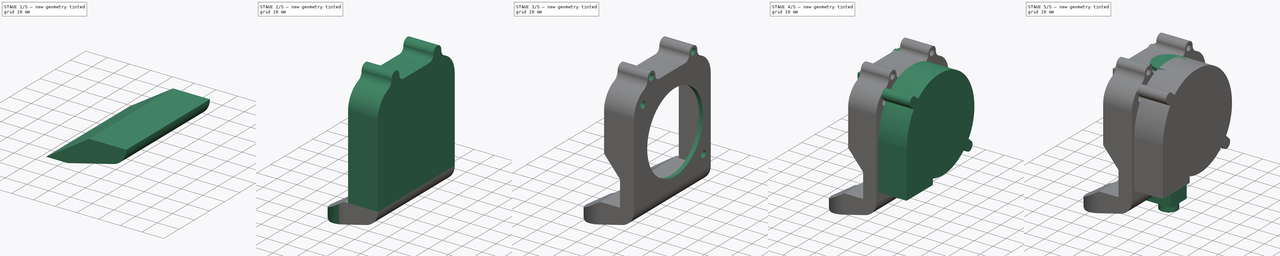
[diagram: build sequence overview — one tinted view per stage of 5, left to right]
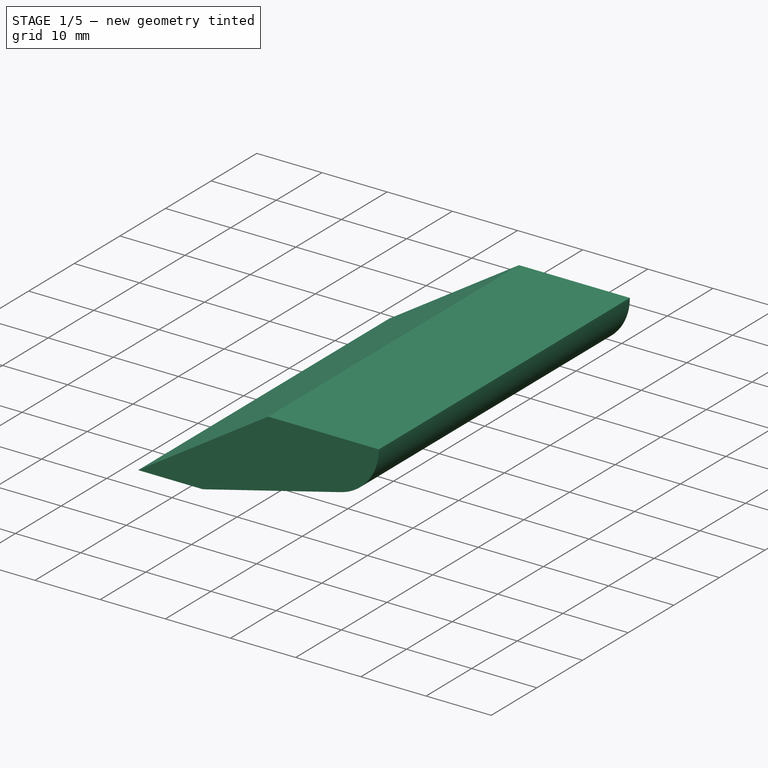
[diagram: stage 1 of 5 — iso view after this stage's code; geometry added in this stage tinted green]
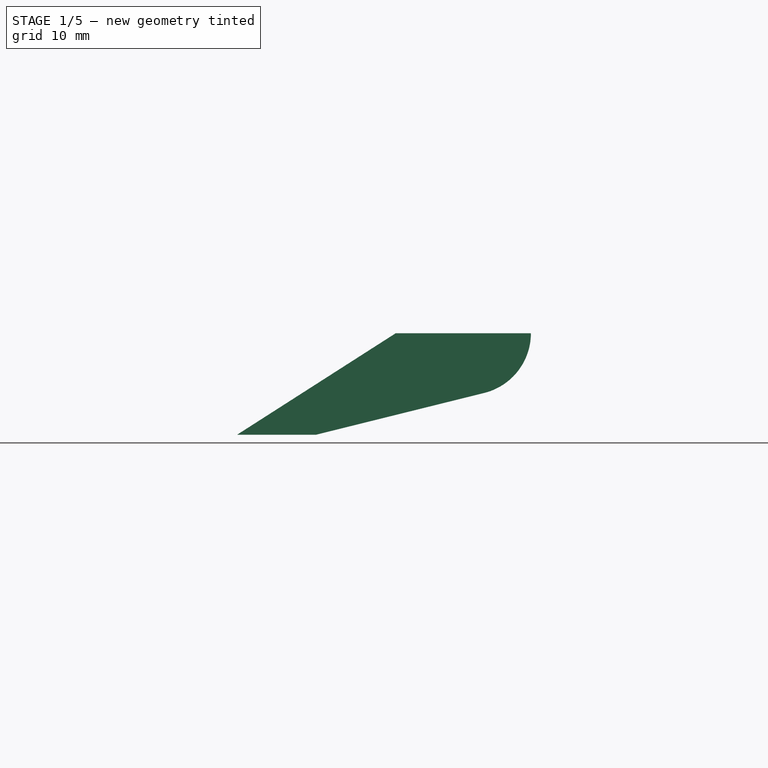
[diagram: stage 1 of 5 — front view after this stage's code; geometry added in this stage tinted green]
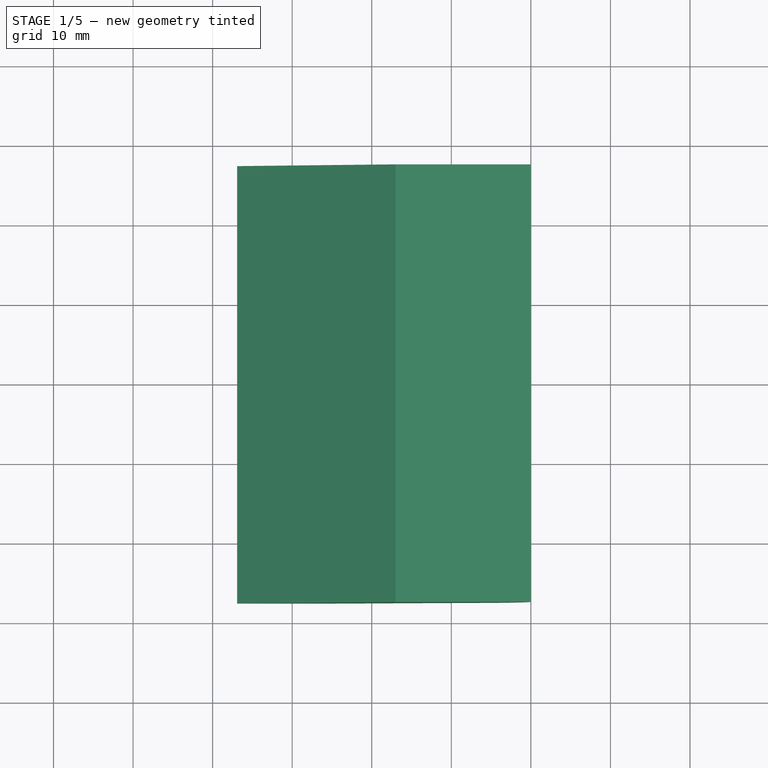
[diagram: stage 1 of 5 — top view after this stage's code; geometry added in this stage tinted green]
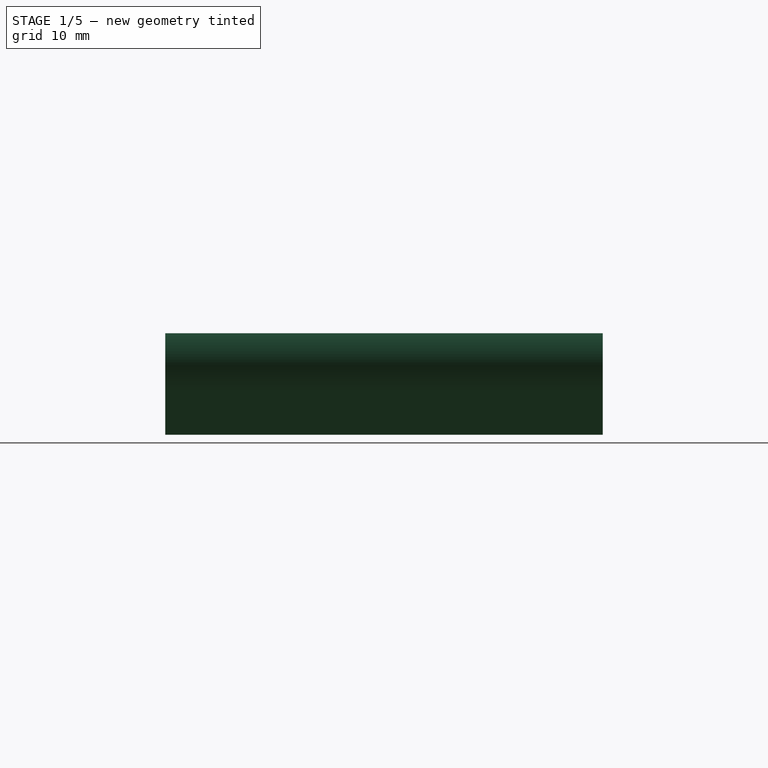
[diagram: stage 1 of 5 — right view after this stage's code; geometry added in this stage tinted green]
FCSTD DOCUMENT  (FreeCAD 0.21R33675 (Git))
Label: V6火山+5015方案B
License: All rights reserved
LicenseURL: http://en.wikipedia.org/wiki/All_rights_reserved
objects: Sketcher::SketchObject×20, Part::Feature×13, PartDesign::Pocket×12, PartDesign::Pad×8, PartDesign::Body×6, PartDesign::Mirrored×2, PartDesign::Revolution×1, App::Part×1
note: 83 computed .brp shape members not serialized (recipe doc carries the construction recipe); baked Part::Feature solids carry a one-line shape summary decoded from their .brp

FEATURE [PartDesign::Body] Body015  label="风扇安装座-能用2"
  Group = -> [Sketch109,Pad041,Sketch110,Pocket053,Sketch111,Pocket054,Sketch112,Pocket055,Sketch114,Pad042,Sketch115,Pocket056,Mirrored001]
  Origin = -> Origin019
  Placement = pos=(32,0,0) rot=(0,0,1;0rad)
  Tip = -> Mirrored001
FEATURE [Sketcher::SketchObject] Sketch116
  FullyConstrained = true
  MapMode = 5
  Placement = pos=(0,0,0) rot=(0.57735,0.57735,0.57735;2.0944rad)
  Support = -> [YZ_Plane020]
  sketch-geometry (14):
    g0: Circle CenterX=15 CenterY=5.1 CenterZ=0 NormalX=0 NormalY=0 NormalZ=1 AngleXU=0 Radius=1.65
    g1: Circle CenterX=-15 CenterY=5.1 CenterZ=0 NormalX=0 NormalY=0 NormalZ=1 AngleXU=0 Radius=1.65
    g2: LineSegment StartX=27.5 StartY=-9.25366 StartZ=0 EndX=27.5 EndY=-51.25 EndZ=0
    g3: LineSegment StartX=27.5 StartY=-51.25 StartZ=0 EndX=-27.5 EndY=-51.25 EndZ=0
    g4: LineSegment StartX=-27.5 StartY=-51.25 StartZ=0 EndX=-27.5 EndY=-9.25366 EndZ=0
    g5: ArcOfCircle CenterX=-16 CenterY=-9.25366 CenterZ=0 NormalX=0 NormalY=0 NormalZ=1 AngleXU=0 Radius=11.5 StartAngle=1.9578 EndAngle=3.14159
    g6: ArcOfCircle CenterX=16 CenterY=-9.25366 CenterZ=0 NormalX=0 NormalY=0 NormalZ=1 AngleXU=0 Radius=11.5 StartAngle=1e-16 EndAngle=1.18379
    g7: ArcOfCircle CenterX=-15 CenterY=5.1 CenterZ=0 NormalX=0 NormalY=0 NormalZ=1 AngleXU=0 Radius=2.85 StartAngle=2e-16 EndAngle=3.14159
    g8: ArcOfCircle CenterX=15 CenterY=5.1 CenterZ=0 NormalX=0 NormalY=0 NormalZ=1 AngleXU=0 Radius=2.85 StartAngle=0 EndAngle=3.14159
    g9: ArcOfCircle CenterX=9.3 CenterY=5.1 CenterZ=0 NormalX=0 NormalY=0 NormalZ=1 AngleXU=0 Radius=2.85 StartAngle=4.71239 EndAngle=6.28319
    g10: ArcOfCircle CenterX=21.85 CenterY=5.1 CenterZ=0 NormalX=0 NormalY=0 NormalZ=1 AngleXU=0 Radius=4 StartAngle=3.14159 EndAngle=4.32538
    g11: ArcOfCircle CenterX=-9.3 CenterY=5.1 CenterZ=0 NormalX=0 NormalY=0 NormalZ=1 AngleXU=0 Radius=2.85 StartAngle=3.14159 EndAngle=4.71239
    g12: ArcOfCircle CenterX=-21.85 CenterY=5.1 CenterZ=0 NormalX=0 NormalY=0 NormalZ=1 AngleXU=0 Radius=4 StartAngle=5.0994 EndAngle=6.28319
    g13: LineSegment StartX=-9.3 StartY=2.25 StartZ=0 EndX=9.3 EndY=2.25 EndZ=0
  constraints (36):
    c: Symmetric(g1,g0,g-2)
    c: Diameter(g0) = 3.3
    c: DistanceX(g0) = 15
    c: DistanceY(g0) = 5.1
    c: Equal(g1,g0)
    c: Coincident(g3,g4)
    c: Vertical(g2)
    c: Vertical(g4)
    c: Coincident(g2,g3)
    c: Equal(g6,g5)
    c: Tangent(g6,g2) = 1.5708
    c: Tangent(g5,g4) = 1.5708
    c: Symmetric(g2,g3,g-2)
    c: Distance(g3) = 55
    c: Radius(g6) = 11.5
    c: Coincident(g7,g1)
    c: Coincident(g8,g0)
    c: Equal(g8,g7)
    c: Horizontal(g9,g8)
    c: Horizontal(g11,g7)
    c: Horizontal(g12,g7)
    c: Tangent(g13,g11) = -1.5708
    c: Tangent(g5,g12) = 1.5708
    c: Tangent(g6,g10) = 1.5708
    c: Diameter(g10) = 8
    c: Diameter(g9) = 5.7
    c: Tangent(g9,g13) = -1.5708
    c: Tangent(g8,g9) = 1.5708
    c: Tangent(g8,g10) = 1.5708
    c: Diameter(g11) = 5.7
    c: Equal(g12,g10)
    c: Tangent(g7,g12) = 1.5708
    c: Tangent(g7,g11) = 1.5708
    c: Diameter(g8) = 5.7
    c: Horizontal(g8,g8)
    c: DistanceY(g2,g9) = 53.5
FEATURE [PartDesign::Pad] Pad043
  Direction = (1,-2e-16,3e-16)
  Length = 15
  Length2 = 10
  Placement = pos=(0,0,0) rot=(0.57735,0.57735,0.57735;2.0944rad)
  Profile = -> Sketch116
  ReferenceAxis = -> Sketch116 [N_Axis]
  Reversed = true
  Type = 0
FEATURE [Sketcher::SketchObject] Sketch117
  AttachmentOffset = pos=(0,0,0) rot=(0,0,1;3.14159rad)
  ExternalGeometry = -> [Pad043]
  FullyConstrained = true
  MapMode = 5
  Placement = pos=(-15,3.3e-15,-3.3e-15) rot=(0.57735,-0.57735,-0.57735;2.0944rad)
  Support = -> [Pad043]
  sketch-geometry (6):
    g0: LineSegment StartX=-26 StartY=-9.25366 StartZ=0 EndX=-26 EndY=-51.25 EndZ=0
    g1: LineSegment StartX=-26 StartY=-51.25 StartZ=0 EndX=26 EndY=-51.25 EndZ=0
    g2: LineSegment StartX=26 StartY=-51.25 StartZ=0 EndX=26 EndY=-9.25366 EndZ=0
    g3: LineSegment StartX=-16 StartY=0.746342 StartZ=0 EndX=16 EndY=0.746342 EndZ=0
    g4: ArcOfCircle CenterX=-16 CenterY=-9.25366 CenterZ=0 NormalX=0 NormalY=0 NormalZ=1 AngleXU=0 Radius=10 StartAngle=1.5708 EndAngle=3.14159
    g5: ArcOfCircle CenterX=16 CenterY=-9.25366 CenterZ=0 NormalX=0 NormalY=0 NormalZ=1 AngleXU=0 Radius=10 StartAngle=0 EndAngle=1.5708
  constraints (14):
    c: Vertical(g0)
    c: Coincident(g0,g1)
    c: Horizontal(g1)
    c: Coincident(g1,g2)
    c: Vertical(g2)
    c: Horizontal(g3)
    c: Tangent(g5,g3) = 1.5708
    c: Tangent(g5,g2) = -1.5708
    c: Tangent(g4,g3) = 1.5708
    c: Tangent(g4,g0) = -1.5708
    c: Coincident(g4,g-6)
    c: Coincident(g5,g-4)
    c: DistanceX(g2,g-4) = 1.5
    c: PointOnObject(g1,g-8)
FEATURE [PartDesign::Pocket] Pocket057
  BaseFeature = -> Pad043
  Direction = (1,-5e-16,5e-16)
  Length = 0
  Length2 = 5
  Offset = -2
  Placement = pos=(0,0,0) rot=(0.57735,0.57735,0.57735;2.0944rad)
  Profile = -> Sketch117
  ReferenceAxis = -> Sketch117 [N_Axis]
  Type = 3
  UpToFace = -> Pad043 [Face13]
FEATURE [Sketcher::SketchObject] Sketch118
  ExternalGeometry = -> [Pocket057]
  FullyConstrained = true
  MapMode = 5
  Placement = pos=(0,0,0) rot=(0.57735,0.57735,0.57735;2.0944rad)
  Support = -> [Pocket057]
  sketch-geometry (5):
    g0: Circle CenterX=-15 CenterY=5.1 CenterZ=0 NormalX=0 NormalY=0 NormalZ=1 AngleXU=0 Radius=1.65
    g1: Circle CenterX=15 CenterY=5.1 CenterZ=0 NormalX=0 NormalY=0 NormalZ=1 AngleXU=0 Radius=1.65
    g2: Circle CenterX=22.4 CenterY=-44.05 CenterZ=0 NormalX=0 NormalY=0 NormalZ=1 AngleXU=0 Radius=1.7
    g3: Circle CenterX=-20.9 CenterY=-5.25 CenterZ=0 NormalX=0 NormalY=0 NormalZ=1 AngleXU=0 Radius=1.7
    g4: Circle CenterX=2 CenterY=-26.25 CenterZ=0 NormalX=0 NormalY=0 NormalZ=1 AngleXU=0 Radius=20
  constraints (13):
    c: Coincident(g0,g-4)
    c: Coincident(g1,g-3)
    c: Equal(g1,g0)
    c: Diameter(g1) = 3.3
    c: Diameter(g2) = 3.4
    c: DistanceX(g2,g-5) = 5.1
    c: DistanceY(g-5,g2) = 7.2
    c: DistanceY(g3,g-6) = 7.5
    c: Equal(g3,g2)
    c: DistanceX(g-7,g3) = 6.6
    c: DistanceX(g4,g-5) = 25.5
    c: DistanceY(g4,g-6) = 28.5
    c: Diameter(g4) = 40
FEATURE [PartDesign::Pocket] Pocket058
  BaseFeature = -> Pocket057
  Direction = (-1,9e-16,-6e-16)
  Length = 0
  Length2 = 5
  Placement = pos=(0,0,0) rot=(0.57735,0.57735,0.57735;2.0944rad)
  Profile = -> Sketch118
  ReferenceAxis = -> Sketch118 [N_Axis]
  Type = 3
  UpToFace = -> Pocket057 [Face5]
FEATURE [Sketcher::SketchObject] Sketch119
  AttachmentOffset = pos=(0,0,0) rot=(0,0,1;3.14159rad)
  ExternalGeometry = -> [Pocket058]
  FullyConstrained = true
  MapMode = 5
  Placement = pos=(-1.21e-14,-27.5,6.1e-15) rot=(-0.57735,0.57735,-0.57735;4.18879rad)
  Support = -> [Pocket058]
  sketch-geometry (4):
    g0: LineSegment StartX=-51.25 StartY=15 StartZ=0 EndX=-28.816 EndY=15 EndZ=0
    g1: LineSegment StartX=-28.816 StartY=15 StartZ=0 EndX=-38.35 EndY=7 EndZ=0
    g2: LineSegment StartX=-38.35 StartY=7 StartZ=0 EndX=-51.25 EndY=7 EndZ=0
    g3: LineSegment StartX=-51.25 StartY=7 StartZ=0 EndX=-51.25 EndY=15 EndZ=0
  constraints (11):
    c: Horizontal(g0)
    c: Coincident(g0,g1)
    c: Coincident(g1,g2)
    c: Horizontal(g2)
    c: Coincident(g2,g3)
    c: Coincident(g3,g0)
    c: Vertical(g3)
    c: Angle(g1,g2) = 2.44346
    c: Distance(g3) = 8
    c: Distance(g2) = 12.9
    c: Coincident(g0,g-3)
FEATURE [PartDesign::Pocket] Pocket059  label="风扇安装座002"
  BaseFeature = -> Pocket058
  Direction = (4e-16,1,-8e-16)
  Length = 5
  Length2 = 5
  Placement = pos=(0,0,0) rot=(0.57735,0.57735,0.57735;2.0944rad)
  Profile = -> Sketch119
  ReferenceAxis = -> Sketch119 [N_Axis]
  Type = 0
FEATURE [PartDesign::Body] Body016  label="风扇安装座-风扇安装座"
  Group = -> [Sketch116,Pad043,Sketch117,Pocket057,Sketch118,Pocket058,Sketch119,Pocket059]
  Origin = -> Origin020
  Placement = pos=(32,0,0) rot=(0,0,1;0rad)
  Tip = -> Pocket059
FEATURE [Sketcher::SketchObject] Sketch126
  AttachmentOffset = pos=(0,0,-27.5) rot=(0,0,1;0rad)
  FullyConstrained = true
  MapMode = 5
  Placement = pos=(0,27.5,6.1e-15) rot=(1,0,0;1.5708rad)
  Support = -> [XZ_Plane020]
  sketch-geometry (5):
    g0: ArcOfCircle CenterX=-7.7279 CenterY=-51.25 CenterZ=0 NormalX=0 NormalY=0 NormalZ=1 AngleXU=0 Radius=7.7279 StartAngle=4.95586 EndAngle=6.28319
    g1: LineSegment StartX=-3.75762e-11 StartY=-51.25 StartZ=0 EndX=-17 EndY=-51.25 EndZ=0
    g2: LineSegment StartX=-36.9266 StartY=-64 StartZ=0 EndX=-27 EndY=-64 EndZ=0
    g3: LineSegment StartX=-27 StartY=-64 StartZ=0 EndX=-5.86489 EndY=-58.75 EndZ=0
    g4: LineSegment StartX=-17 StartY=-51.25 StartZ=0 EndX=-36.9266 EndY=-64 EndZ=0
  constraints (15):
    c: Coincident(g1,g0)
    c: Horizontal(g1)
    c: Horizontal(g2)
    c: Coincident(g4,g1)
    c: Distance(g1) = 17
    c: Tangent(g3,g0) = -1.5708
    c: Tangent(g-2,g0)
    c: DistanceX(g2) = -27
    c: DistanceY(g2) = -64
    c: DistanceX(g2) = -36.9266
    c: DistanceY(g0,g0) = 7.5
    c: Coincident(g2,g4)
    c: Coincident(g2,g3)
    c: DistanceX(g0) = 0
    c: DistanceY(g0) = -51.25
FEATURE [PartDesign::Pad] Pad046
  Direction = (0,-1,-2e-16)
  Length = 10
  Length2 = 10
  Placement = pos=(0,0,0) rot=(1,0,0;1.5708rad)
  Profile = -> Sketch126
  ReferenceAxis = -> Sketch126 [N_Axis]
  Type = 3
  UpToFace = -> Pocket059 [Face11]
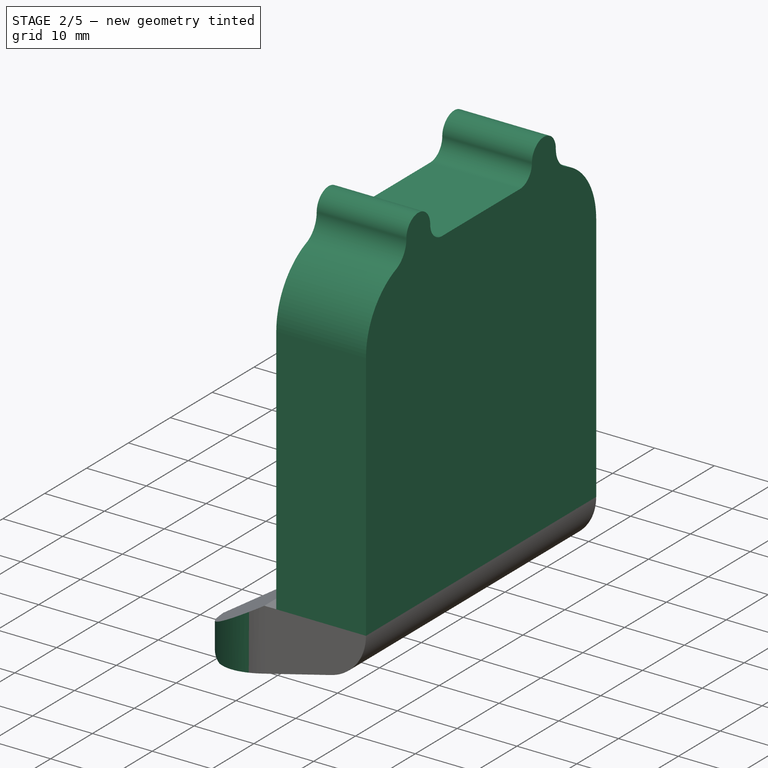
[diagram: stage 2 of 5 — iso view after this stage's code; geometry added in this stage tinted green]
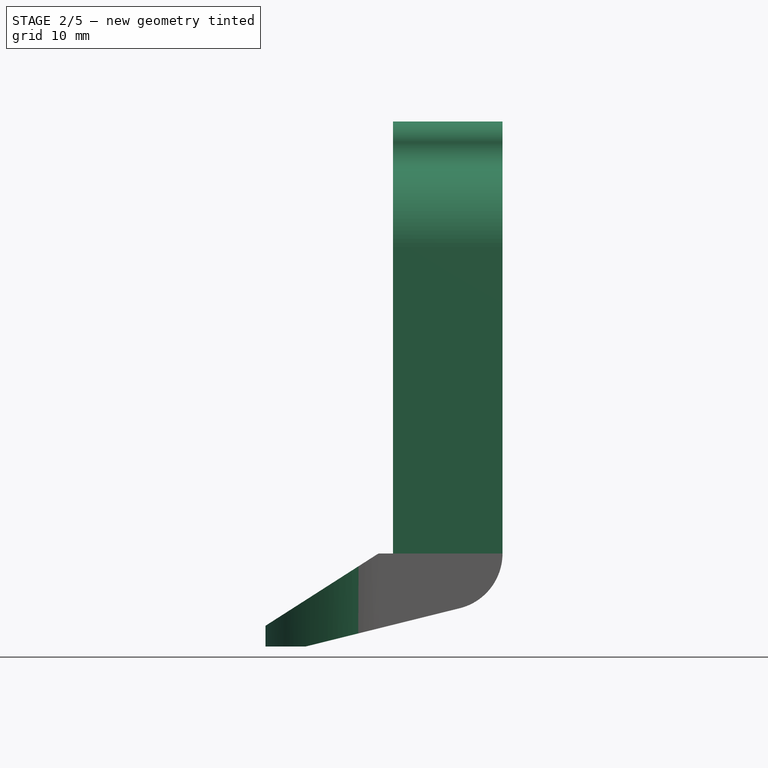
[diagram: stage 2 of 5 — front view after this stage's code; geometry added in this stage tinted green]
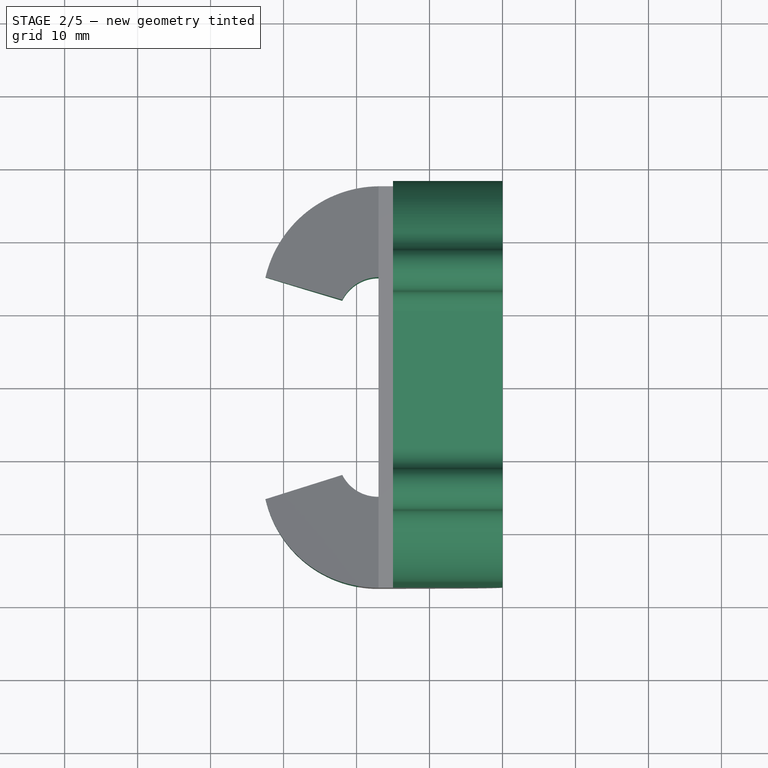
[diagram: stage 2 of 5 — top view after this stage's code; geometry added in this stage tinted green]
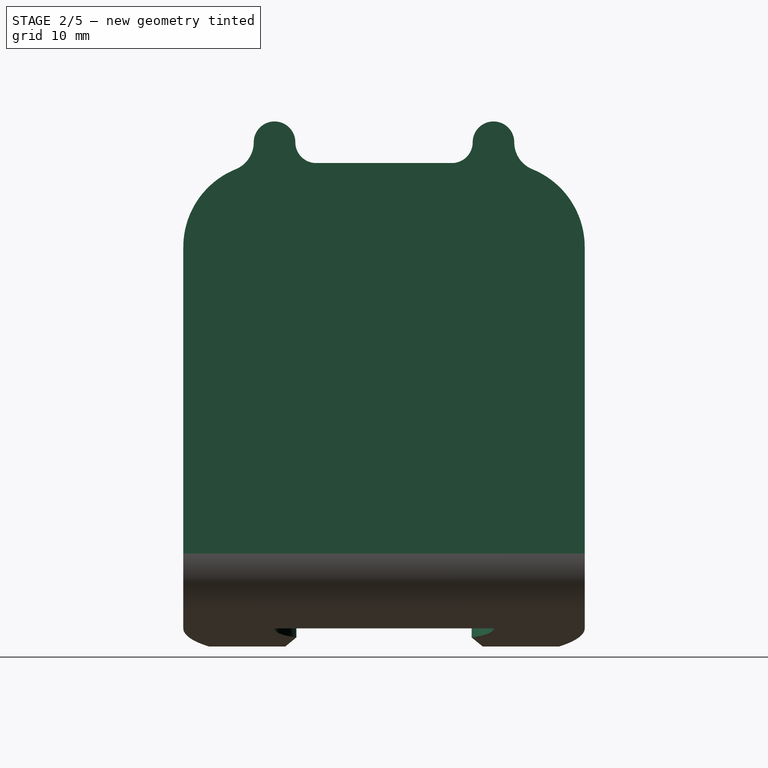
[diagram: stage 2 of 5 — right view after this stage's code; geometry added in this stage tinted green]
FEATURE [PartDesign::Body] Body  label="5015风扇"
  Group = -> [Sketch021,Pad]
  Origin = -> Origin
  Placement = pos=(14,0,0) rot=(0,0,1;0rad)
  Tip = -> Pad
FEATURE [Sketcher::SketchObject] Sketch109
  FullyConstrained = true
  MapMode = 5
  Placement = pos=(0,0,0) rot=(0.57735,0.57735,0.57735;2.0944rad)
  Support = -> [YZ_Plane019]
  sketch-geometry (14):
    g0: Circle CenterX=15 CenterY=5.1 CenterZ=0 NormalX=0 NormalY=0 NormalZ=1 AngleXU=0 Radius=1.65
    g1: Circle CenterX=-15 CenterY=5.1 CenterZ=0 NormalX=0 NormalY=0 NormalZ=1 AngleXU=0 Radius=1.65
    g2: LineSegment StartX=27.5 StartY=-9.25366 StartZ=0 EndX=27.5 EndY=-51.25 EndZ=0
    g3: LineSegment StartX=27.5 StartY=-51.25 StartZ=0 EndX=-27.5 EndY=-51.25 EndZ=0
    g4: LineSegment StartX=-27.5 StartY=-51.25 StartZ=0 EndX=-27.5 EndY=-9.25366 EndZ=0
    g5: ArcOfCircle CenterX=-16 CenterY=-9.25366 CenterZ=0 NormalX=0 NormalY=0 NormalZ=1 AngleXU=0 Radius=11.5 StartAngle=1.9578 EndAngle=3.14159
    g6: ArcOfCircle CenterX=16 CenterY=-9.25366 CenterZ=0 NormalX=0 NormalY=0 NormalZ=1 AngleXU=0 Radius=11.5 StartAngle=1e-16 EndAngle=1.18379
    g7: ArcOfCircle CenterX=-15 CenterY=5.1 CenterZ=0 NormalX=0 NormalY=0 NormalZ=1 AngleXU=0 Radius=2.85 StartAngle=2e-16 EndAngle=3.14159
    g8: ArcOfCircle CenterX=15 CenterY=5.1 CenterZ=0 NormalX=0 NormalY=0 NormalZ=1 AngleXU=0 Radius=2.85 StartAngle=0 EndAngle=3.14159
    g9: ArcOfCircle CenterX=9.3 CenterY=5.1 CenterZ=0 NormalX=0 NormalY=0 NormalZ=1 AngleXU=0 Radius=2.85 StartAngle=4.71239 EndAngle=6.28319
    g10: ArcOfCircle CenterX=21.85 CenterY=5.1 CenterZ=0 NormalX=0 NormalY=0 NormalZ=1 AngleXU=0 Radius=4 StartAngle=3.14159 EndAngle=4.32538
    g11: ArcOfCircle CenterX=-9.3 CenterY=5.1 CenterZ=0 NormalX=0 NormalY=0 NormalZ=1 AngleXU=0 Radius=2.85 StartAngle=3.14159 EndAngle=4.71239
    g12: ArcOfCircle CenterX=-21.85 CenterY=5.1 CenterZ=0 NormalX=0 NormalY=0 NormalZ=1 AngleXU=0 Radius=4 StartAngle=5.0994 EndAngle=6.28319
    g13: LineSegment StartX=-9.3 StartY=2.25 StartZ=0 EndX=9.3 EndY=2.25 EndZ=0
  constraints (36):
    c: Symmetric(g1,g0,g-2)
    c: Diameter(g0) = 3.3
    c: DistanceX(g0) = 15
    c: DistanceY(g0) = 5.1
    c: Equal(g1,g0)
    c: Coincident(g3,g4)
    c: Vertical(g2)
    c: Vertical(g4)
    c: Coincident(g2,g3)
    c: Equal(g6,g5)
    c: Tangent(g6,g2) = 1.5708
    c: Tangent(g5,g4) = 1.5708
    c: Symmetric(g2,g3,g-2)
    c: Distance(g3) = 55
    c: Radius(g6) = 11.5
    c: Coincident(g7,g1)
    c: Coincident(g8,g0)
    c: Equal(g8,g7)
    c: Horizontal(g9,g8)
    c: Horizontal(g11,g7)
    c: Horizontal(g12,g7)
    c: Tangent(g13,g11) = -1.5708
    c: Tangent(g5,g12) = 1.5708
    c: Tangent(g6,g10) = 1.5708
    c: Diameter(g10) = 8
    c: Diameter(g9) = 5.7
    c: Tangent(g9,g13) = -1.5708
    c: Tangent(g8,g9) = 1.5708
    c: Tangent(g8,g10) = 1.5708
    c: Diameter(g11) = 5.7
    c: Equal(g12,g10)
    c: Tangent(g7,g12) = 1.5708
    c: Tangent(g7,g11) = 1.5708
    c: Diameter(g8) = 5.7
    c: Horizontal(g8,g8)
    c: DistanceY(g2,g9) = 53.5
FEATURE [PartDesign::Pad] Pad041
  Direction = (1,-2e-16,3e-16)
  Length = 15
  Length2 = 10
  Placement = pos=(0,0,0) rot=(0.57735,0.57735,0.57735;2.0944rad)
  Profile = -> Sketch109
  ReferenceAxis = -> Sketch109 [N_Axis]
  Reversed = true
  Type = 0
FEATURE [Sketcher::SketchObject] Sketch110
  AttachmentOffset = pos=(0,0,0) rot=(0,0,1;3.14159rad)
  ExternalGeometry = -> [Pad041]
  FullyConstrained = true
  MapMode = 5
  Placement = pos=(-15,3.3e-15,-3.3e-15) rot=(0.57735,-0.57735,-0.57735;2.0944rad)
  Support = -> [Pad041]
  sketch-geometry (6):
    g0: LineSegment StartX=-26 StartY=-9.25366 StartZ=0 EndX=-26 EndY=-51.25 EndZ=0
    g1: LineSegment StartX=-26 StartY=-51.25 StartZ=0 EndX=26 EndY=-51.25 EndZ=0
    g2: LineSegment StartX=26 StartY=-51.25 StartZ=0 EndX=26 EndY=-9.25366 EndZ=0
    g3: LineSegment StartX=-16 StartY=0.746342 StartZ=0 EndX=16 EndY=0.746342 EndZ=0
    g4: ArcOfCircle CenterX=-16 CenterY=-9.25366 CenterZ=0 NormalX=0 NormalY=0 NormalZ=1 AngleXU=0 Radius=10 StartAngle=1.5708 EndAngle=3.14159
    g5: ArcOfCircle CenterX=16 CenterY=-9.25366 CenterZ=0 NormalX=0 NormalY=0 NormalZ=1 AngleXU=0 Radius=10 StartAngle=0 EndAngle=1.5708
  constraints (14):
    c: Vertical(g0)
    c: Coincident(g0,g1)
    c: Horizontal(g1)
    c: Coincident(g1,g2)
    c: Vertical(g2)
    c: Horizontal(g3)
    c: Tangent(g5,g3) = 1.5708
    c: Tangent(g5,g2) = -1.5708
    c: Tangent(g4,g3) = 1.5708
    c: Tangent(g4,g0) = -1.5708
    c: Coincident(g4,g-6)
    c: Coincident(g5,g-4)
    c: DistanceX(g2,g-4) = 1.5
    c: PointOnObject(g1,g-8)
FEATURE [PartDesign::Pocket] Pocket053
  BaseFeature = -> Pad041
  Direction = (1,-5e-16,5e-16)
  Length = 0
  Length2 = 5
  Offset = -2
  Placement = pos=(0,0,0) rot=(0.57735,0.57735,0.57735;2.0944rad)
  Profile = -> Sketch110
  ReferenceAxis = -> Sketch110 [N_Axis]
  Type = 3
  UpToFace = -> Pad041 [Face13]
FEATURE [Sketcher::SketchObject] Sketch127
  AttachmentOffset = pos=(0,0,0) rot=(0,0,1;1.5708rad)
  FullyConstrained = false
  MapMode = 5
  Placement = pos=(0,-1.14e-14,-51.25) rot=(0,0,1;4.71239rad)
  Support = -> [Pad046]
  sketch-geometry (11):
    g0: LineSegment StartX=-27.5 StartY=-17 StartZ=0 EndX=-27.5 EndY=-43 EndZ=0
    g1: LineSegment StartX=-27.5 StartY=-43 StartZ=0 EndX=0 EndY=-43 EndZ=0
    g2: LineSegment StartX=0 StartY=-43 StartZ=0 EndX=0 EndY=-17 EndZ=0
    g3: LineSegment StartX=0 StartY=-17 StartZ=0 EndX=-15.0502 EndY=-17 EndZ=0
    g4: ArcOfCircle CenterX=-11.6128 CenterY=-17 CenterZ=0 NormalX=0 NormalY=0 NormalZ=1 AngleXU=0 Radius=15.8872 StartAngle=3.14159 EndAngle=4.48463
    g5: ArcOfCircle CenterX=-9.50413 CenterY=-17 CenterZ=0 NormalX=0 NormalY=0 NormalZ=1 AngleXU=0 Radius=5.54603 StartAngle=3.14159 EndAngle=4.24559
    g6: LineSegment StartX=-15.0502 StartY=-17 StartZ=0 EndX=-15.0502 EndY=-13.1163 EndZ=0
    g7: Circle CenterX=0 CenterY=-32 CenterZ=0 NormalX=0 NormalY=0 NormalZ=1 AngleXU=0 Radius=4
    g8: LineSegment StartX=-12 StartY=-21.9527 StartZ=0 EndX=-15.2 EndY=-32.477 EndZ=0
    g9: LineSegment StartX=-12 StartY=-21.9527 StartZ=0 EndX=0 EndY=-28 EndZ=0
    g10: LineSegment StartX=-15.2 StartY=-32.477 StartZ=0 EndX=0 EndY=-36 EndZ=0
  constraints (31):
    c: Vertical(g0)
    c: Coincident(g0,g1)
    c: PointOnObject(g1,g-2)
    c: Horizontal(g1)
    c: Coincident(g1,g2)
    c: PointOnObject(g2,g-2)
    c: Coincident(g2,g3)
    c: Horizontal(g3)
    c: Horizontal(g0,g3)
    c: Tangent(g4,g0) = -1.5708
    c: Coincident(g3,g5)
    c: Coincident(g6,g3)
    c: Vertical(g6)
    c: Tangent(g6,g5)
    c: PointOnObject(g7,g2)
    c: DistanceY(g7) = -32
    c: Coincident(g8,g5)
    c: Coincident(g8,g4)
    c: PointOnObject(g9,g2)
    c: PointOnObject(g10,g2)
    c: Tangent(g9,g5) = -1.5708
    c: Tangent(g10,g4) = -1.5708
    c: Diameter(g7) = 8
    c: PointOnObject(g9,g7)
    c: PointOnObject(g10,g7)
    c: Distance(g8) = 11
    c: DistanceX(g5,g2) = 12
    c: DistanceX(g4,g1) = 15.2
    c: Distance(g0) = 26
    c: DistanceX(g0) = -27.5
    c: DistanceY(g0) = -17
FEATURE [PartDesign::Pocket] Pocket064
  BaseFeature = -> Pad046
  Direction = (0,2e-16,-1)
  Length = 0
  Length2 = 5
  Placement = pos=(0,0,0) rot=(1,0,0;1.5708rad)
  Profile = -> Sketch127
  ReferenceAxis = -> Sketch127 [N_Axis]
  Type = 1
FEATURE [PartDesign::Mirrored] Mirrored003
  BaseFeature = -> Pocket064
  MirrorPlane = -> Sketch127 [V_Axis]
  Originals = -> [Pocket064]
  Placement = pos=(0,0,0) rot=(1,0,0;1.5708rad)
FEATURE [PartDesign::Body] Body017  label="风扇安装座-导风道"
  Group = -> [Sketch126,Pad046,Sketch127,Pocket064,Mirrored003]
  Origin = -> Origin021
  Placement = pos=(32,0,0) rot=(0,0,1;0rad)
  Tip = -> Mirrored003
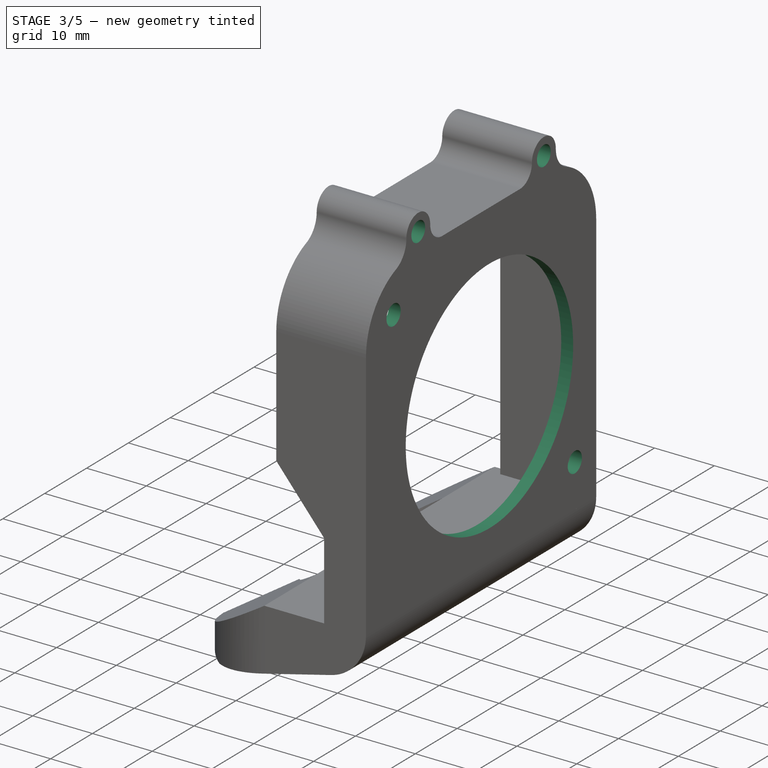
[diagram: stage 3 of 5 — iso view after this stage's code; geometry added in this stage tinted green]
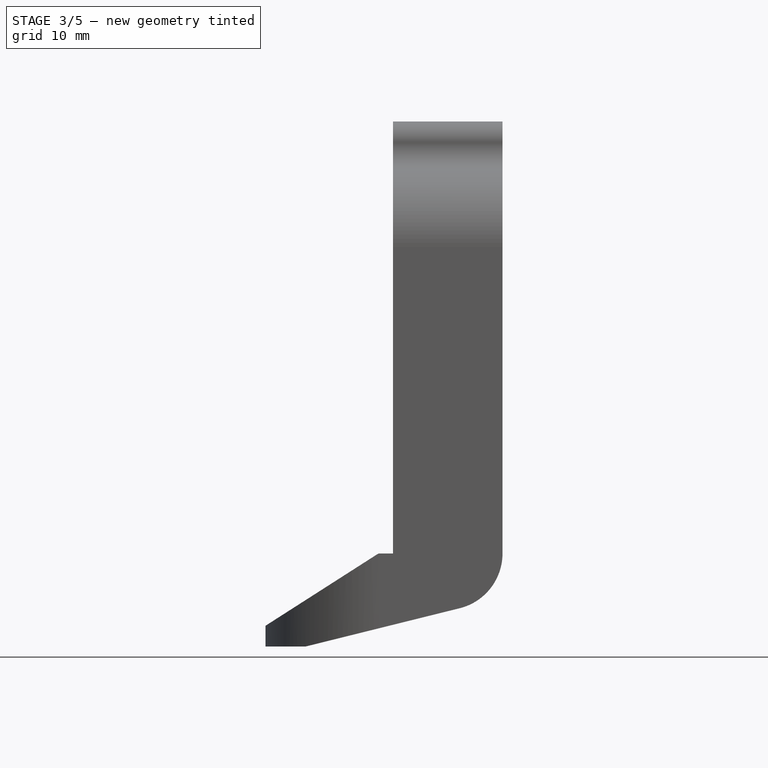
[diagram: stage 3 of 5 — front view after this stage's code; geometry added in this stage tinted green]
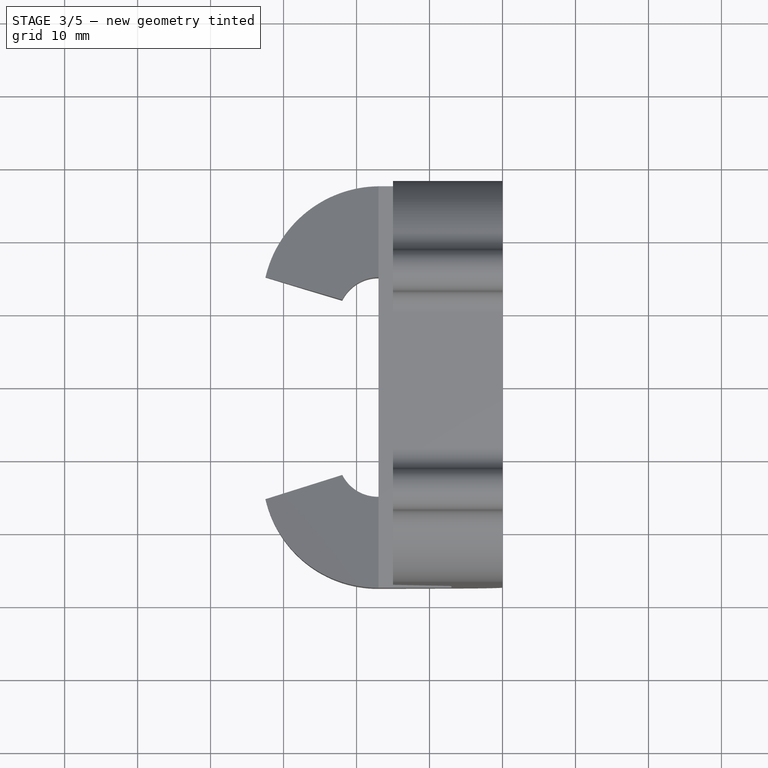
[diagram: stage 3 of 5 — top view after this stage's code; geometry added in this stage tinted green]
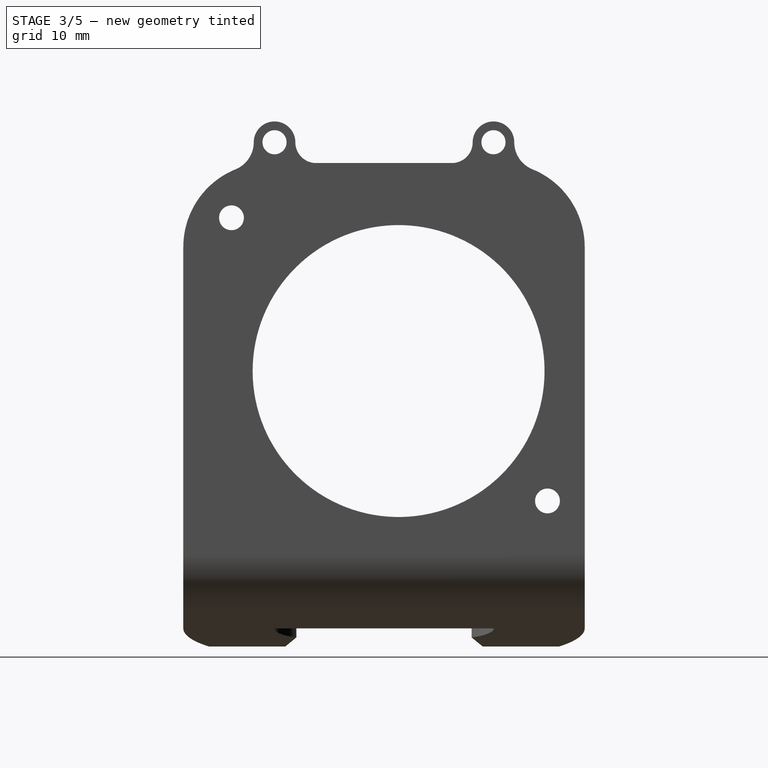
[diagram: stage 3 of 5 — right view after this stage's code; geometry added in this stage tinted green]
FEATURE [Sketcher::SketchObject] Sketch111
  ExternalGeometry = -> [Pocket053]
  FullyConstrained = true
  MapMode = 5
  Placement = pos=(0,0,0) rot=(0.57735,0.57735,0.57735;2.0944rad)
  Support = -> [Pocket053]
  sketch-geometry (5):
    g0: Circle CenterX=-15 CenterY=5.1 CenterZ=0 NormalX=0 NormalY=0 NormalZ=1 AngleXU=0 Radius=1.65
    g1: Circle CenterX=15 CenterY=5.1 CenterZ=0 NormalX=0 NormalY=0 NormalZ=1 AngleXU=0 Radius=1.65
    g2: Circle CenterX=22.4 CenterY=-44.05 CenterZ=0 NormalX=0 NormalY=0 NormalZ=1 AngleXU=0 Radius=1.7
    g3: Circle CenterX=-20.9 CenterY=-5.25 CenterZ=0 NormalX=0 NormalY=0 NormalZ=1 AngleXU=0 Radius=1.7
    g4: Circle CenterX=2 CenterY=-26.25 CenterZ=0 NormalX=0 NormalY=0 NormalZ=1 AngleXU=0 Radius=20
  constraints (13):
    c: Coincident(g0,g-4)
    c: Coincident(g1,g-3)
    c: Equal(g1,g0)
    c: Diameter(g1) = 3.3
    c: Diameter(g2) = 3.4
    c: DistanceX(g2,g-5) = 5.1
    c: DistanceY(g-5,g2) = 7.2
    c: DistanceY(g3,g-6) = 7.5
    c: Equal(g3,g2)
    c: DistanceX(g-7,g3) = 6.6
    c: DistanceX(g4,g-5) = 25.5
    c: DistanceY(g4,g-6) = 28.5
    c: Diameter(g4) = 40
FEATURE [PartDesign::Pocket] Pocket054
  BaseFeature = -> Pocket053
  Direction = (-1,9e-16,-6e-16)
  Length = 0
  Length2 = 5
  Placement = pos=(0,0,0) rot=(0.57735,0.57735,0.57735;2.0944rad)
  Profile = -> Sketch111
  ReferenceAxis = -> Sketch111 [N_Axis]
  Type = 3
  UpToFace = -> Pocket053 [Face5]
FEATURE [Sketcher::SketchObject] Sketch112
  AttachmentOffset = pos=(0,0,0) rot=(0,0,1;3.14159rad)
  ExternalGeometry = -> [Pocket054]
  FullyConstrained = true
  MapMode = 5
  Placement = pos=(-1.21e-14,-27.5,6.1e-15) rot=(-0.57735,0.57735,-0.57735;4.18879rad)
  Support = -> [Pocket054]
  sketch-geometry (4):
    g0: LineSegment StartX=-51.25 StartY=15 StartZ=0 EndX=-28.816 EndY=15 EndZ=0
    g1: LineSegment StartX=-28.816 StartY=15 StartZ=0 EndX=-38.35 EndY=7 EndZ=0
    g2: LineSegment StartX=-38.35 StartY=7 StartZ=0 EndX=-51.25 EndY=7 EndZ=0
    g3: LineSegment StartX=-51.25 StartY=7 StartZ=0 EndX=-51.25 EndY=15 EndZ=0
  constraints (11):
    c: Horizontal(g0)
    c: Coincident(g0,g1)
    c: Coincident(g1,g2)
    c: Horizontal(g2)
    c: Coincident(g2,g3)
    c: Coincident(g3,g0)
    c: Vertical(g3)
    c: Angle(g1,g2) = 2.44346
    c: Distance(g3) = 8
    c: Distance(g2) = 12.9
    c: Coincident(g0,g-3)
FEATURE [PartDesign::Pocket] Pocket055  label="风扇安装座001"
  BaseFeature = -> Pocket054
  Direction = (4e-16,1,-8e-16)
  Length = 5
  Length2 = 5
  Placement = pos=(0,0,0) rot=(0.57735,0.57735,0.57735;2.0944rad)
  Profile = -> Sketch112
  ReferenceAxis = -> Sketch112 [N_Axis]
  Type = 0
FEATURE [Sketcher::SketchObject] Sketch114  label="Sketch113"
  AttachmentOffset = pos=(0,0,0) rot=(0.707107,0.707107,0;3.14159rad)
  ExternalGeometry = -> [Pocket055]
  FullyConstrained = true
  MapMode = 5
  Placement = pos=(1.21e-14,27.5,-6.1e-15) rot=(-1,0,0;4.71239rad)
  Support = -> [Pocket055]
  sketch-geometry (5):
    g0: ArcOfCircle CenterX=-7.7279 CenterY=-51.25 CenterZ=0 NormalX=0 NormalY=0 NormalZ=1 AngleXU=0 Radius=7.7279 StartAngle=4.95586 EndAngle=6.28319
    g1: LineSegment StartX=-3.75762e-11 StartY=-51.25 StartZ=0 EndX=-17 EndY=-51.25 EndZ=0
    g2: LineSegment StartX=-36.9266 StartY=-64 StartZ=0 EndX=-27 EndY=-64 EndZ=0
    g3: LineSegment StartX=-27 StartY=-64 StartZ=0 EndX=-5.86489 EndY=-58.75 EndZ=0
    g4: LineSegment StartX=-17 StartY=-51.25 StartZ=0 EndX=-36.9266 EndY=-64 EndZ=0
  constraints (14):
    c: Coincident(g1,g0)
    c: Horizontal(g1)
    c: Horizontal(g2)
    c: Coincident(g4,g1)
    c: Distance(g1) = 17
    c: Tangent(g3,g0) = -1.5708
    c: Tangent(g-2,g0)
    c: DistanceX(g2) = -27
    c: DistanceY(g2) = -64
    c: DistanceX(g2) = -36.9266
    c: DistanceY(g0,g0) = 7.5
    c: Coincident(g0,g-3)
    c: Coincident(g2,g4)
    c: Coincident(g2,g3)
FEATURE [PartDesign::Pad] Pad042
  BaseFeature = -> Pocket055
  Direction = (-3e-16,-1,2e-16)
  Length = 10
  Length2 = 10
  Placement = pos=(0,0,0) rot=(0.57735,0.57735,0.57735;2.0944rad)
  Profile = -> Sketch114
  ReferenceAxis = -> Sketch114 [N_Axis]
  Type = 3
  UpToFace = -> Pocket055 [Face11]
FEATURE [Sketcher::SketchObject] Sketch115
  ExternalGeometry = -> [Pad042]
  FullyConstrained = false
  MapMode = 5
  Placement = pos=(1.03e-14,-2.26e-14,-51.25) rot=(0,0,-1;1.5708rad)
  Support = -> [Pad042]
  sketch-geometry (11):
    g0: LineSegment StartX=-27.5 StartY=-17 StartZ=0 EndX=-27.5 EndY=-43 EndZ=0
    g1: LineSegment StartX=-27.5 StartY=-43 StartZ=0 EndX=0 EndY=-43 EndZ=0
    g2: LineSegment StartX=0 StartY=-43 StartZ=0 EndX=0 EndY=-17 EndZ=0
    g3: LineSegment StartX=0 StartY=-17 StartZ=0 EndX=-15.0502 EndY=-17 EndZ=0
    g4: ArcOfCircle CenterX=-11.6128 CenterY=-17 CenterZ=0 NormalX=0 NormalY=0 NormalZ=1 AngleXU=0 Radius=15.8872 StartAngle=3.14159 EndAngle=4.48463
    g5: ArcOfCircle CenterX=-9.50413 CenterY=-17 CenterZ=0 NormalX=0 NormalY=0 NormalZ=1 AngleXU=0 Radius=5.54603 StartAngle=3.14159 EndAngle=4.24559
    g6: LineSegment StartX=-15.0502 StartY=-17 StartZ=0 EndX=-15.0502 EndY=-13.1163 EndZ=0
    g7: Circle CenterX=0 CenterY=-32 CenterZ=0 NormalX=0 NormalY=0 NormalZ=1 AngleXU=0 Radius=4
    g8: LineSegment StartX=-12 StartY=-21.9527 StartZ=0 EndX=-15.2 EndY=-32.477 EndZ=0
    g9: LineSegment StartX=-12 StartY=-21.9527 StartZ=0 EndX=0 EndY=-28 EndZ=0
    g10: LineSegment StartX=-15.2 StartY=-32.477 StartZ=0 EndX=0 EndY=-36 EndZ=0
  constraints (30):
    c: Coincident(g0,g-3)
    c: Vertical(g0)
    c: Coincident(g0,g1)
    c: PointOnObject(g1,g-2)
    c: Horizontal(g1)
    c: Coincident(g1,g2)
    c: PointOnObject(g2,g-2)
    c: Coincident(g2,g3)
    c: Horizontal(g3)
    c: Horizontal(g0,g3)
    c: Tangent(g4,g0) = -1.5708
    c: Coincident(g3,g5)
    c: Coincident(g6,g3)
    c: Vertical(g6)
    c: Tangent(g6,g5)
    c: PointOnObject(g7,g2)
    c: DistanceY(g7) = -32
    c: Coincident(g8,g5)
    c: Coincident(g8,g4)
    c: PointOnObject(g9,g2)
    c: PointOnObject(g10,g2)
    c: Tangent(g9,g5) = -1.5708
    c: Tangent(g10,g4) = -1.5708
    c: Diameter(g7) = 8
    c: PointOnObject(g9,g7)
    c: PointOnObject(g10,g7)
    c: Distance(g8) = 11
    c: DistanceX(g5,g2) = 12
    c: DistanceX(g4,g1) = 15.2
    c: Distance(g0) = 26
FEATURE [PartDesign::Pocket] Pocket056
  BaseFeature = -> Pad042
  Direction = (2e-16,-4e-16,-1)
  Length = 0
  Length2 = 5
  Placement = pos=(0,0,0) rot=(0.57735,0.57735,0.57735;2.0944rad)
  Profile = -> Sketch115
  ReferenceAxis = -> Sketch115 [N_Axis]
  Type = 1
FEATURE [PartDesign::Mirrored] Mirrored001
  BaseFeature = -> Pocket056
  MirrorPlane = -> Sketch115 [V_Axis]
  Originals = -> [Pocket056]
  Placement = pos=(0,0,0) rot=(0.57735,0.57735,0.57735;2.0944rad)
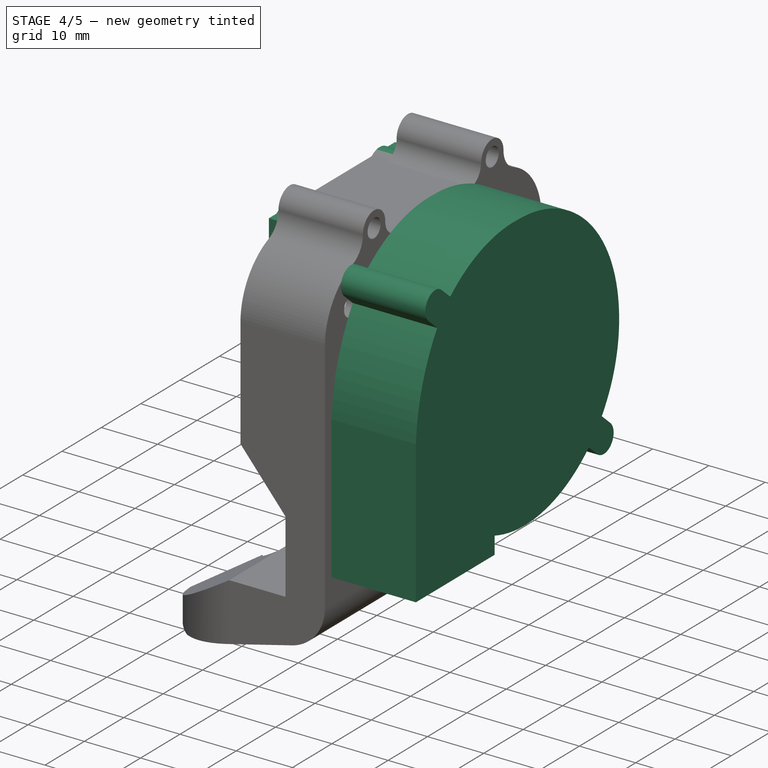
[diagram: stage 4 of 5 — iso view after this stage's code; geometry added in this stage tinted green]
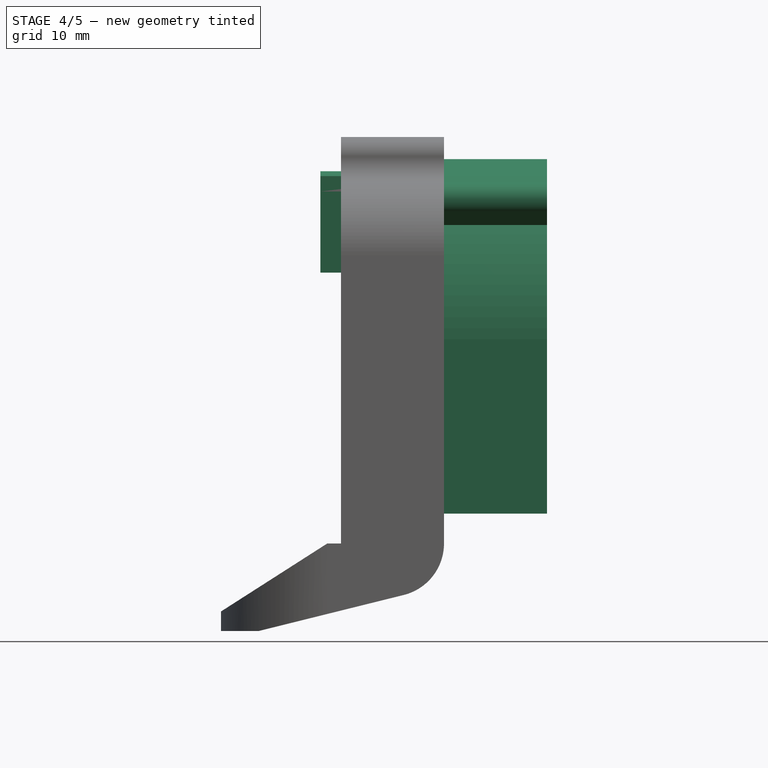
[diagram: stage 4 of 5 — front view after this stage's code; geometry added in this stage tinted green]
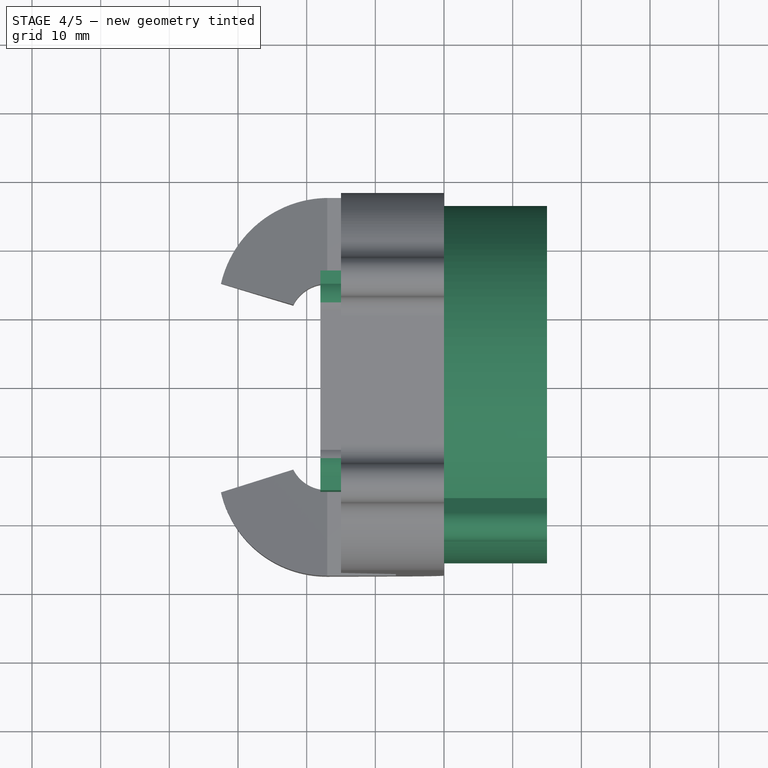
[diagram: stage 4 of 5 — top view after this stage's code; geometry added in this stage tinted green]
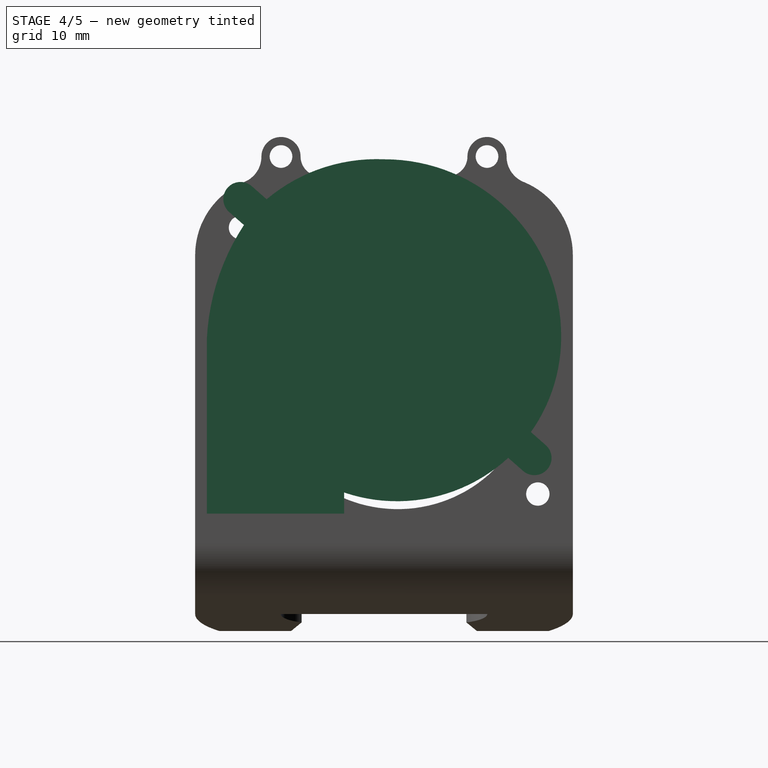
[diagram: stage 4 of 5 — right view after this stage's code; geometry added in this stage tinted green]
FEATURE [PartDesign::Body] Body002  label="E3DV6火山（玻璃热敏）"
  Group = -> [Sketch015,Revolution,Sketch016,Pad006,Pad007]
  Origin = -> Origin002
  Tip = -> Pad007
FEATURE [Part::Feature] Part__Feature166  label="<unrecoverable-encoding: 13 bytes cea2d18dd09ecebbbfaab9d6... md5=9adbc4b6>A125V003"
  Placement = pos=(23.9,-14.5,21.31) rot=(0,0,-1;1.5708rad)
  shape: bbox 13.5 x 14.59 x 5.62 mm, 42 faces (baked)
FEATURE [Part::Feature] Part__Feature167  label="MGN12H»¬¿002"
  Placement = pos=(0,-19,0) rot=(0,-1,0;1.5708rad)
  shape: bbox 45.4 x 10 x 27 mm, 34 faces (baked)
FEATURE [Part::Feature] Part__Feature169  label="ɢɈ¹ܰ²װ°"
  Placement = pos=(0,-19.5,16.5) rot=(0,0,1;0rad)
  shape: bbox 54 x 39 x 4 mm, 68 faces (baked)
FEATURE [Part::Feature] Part__Feature172  label="同步带压片"
  Placement = pos=(-16,-29,21) rot=(0,0,1;0rad)
  shape: bbox 8 x 16 x 3 mm, 12 faces (baked)
FEATURE [Part::Feature] Part__Feature173  label="同步带压片001"
  Placement = pos=(16,-29,21) rot=(0,1,0;3.14159rad)
  shape: bbox 8 x 16 x 3 mm, 12 faces (baked)
FEATURE [Part::Feature] Part__Feature174  label="42步进电机004"
  Placement = pos=(-3.675,23.5,12.5) rot=(0,0,1;0rad)
  shape: bbox 42.3 x 44.3 x 62 mm, 50 faces (baked)
FEATURE [Part::Feature] Part__Feature175  label="42步进电机支架"
  Placement = pos=(-3.675,23.5,14.5) rot=(0,0,1;0rad)
  shape: bbox 63 x 45 x 40 mm, 42 faces (baked)
FEATURE [Part::Feature] Part__Feature176  label="MGN12H滑筷棯接颁灅住"
  Placement = pos=(0,0,0) rot=(0.57735,-0.57735,-0.57735;2.0944rad)
  shape: bbox 63 x 6 x 28 mm, 64 faces (baked)
FEATURE [Part::Feature] Part__Feature177  label="BMG挤出机"
  Placement = pos=(0,2.35,37) rot=(0,0,1;0rad)
  shape: bbox 58 x 75 x 33.5 mm, 84 faces (baked)
FEATURE [Part::Feature] Part__Feature179  label="内六角平圆头螺钉M3¡Á029"
  Placement = pos=(0,-3,18.5) rot=(1,0,0;1.5708rad)
  shape: bbox 6.17 x 6.17 x 12.2 mm, 24 faces (baked)
FEATURE [Part::Feature] Part__Feature180  label="内六角平圆头螺钉M3¡Á030"
  Placement = pos=(15,-3,18.5) rot=(1,0,0;1.5708rad)
  shape: bbox 6.17 x 6.17 x 12.2 mm, 24 faces (baked)
FEATURE [Part::Feature] Part__Feature178  label="内六角平圆头螺钉M3¡Á028"
  Placement = pos=(-15,-3,18.5) rot=(1,0,0;1.5708rad)
  shape: bbox 6.17 x 6.17 x 12.2 mm, 24 faces (baked)
FEATURE [App::Part] CR10________________________1  label="CR10近程喷嘴模块1"
  Group = -> [Part__Feature166,Part__Feature167,Part__Feature169,Part__Feature172,Part__Feature173,Part__Feature174,Part__Feature175,Part__Feature176,Part__Feature177,Part__Feature178,Part__Feature179,Part__Feature180]
  Origin = -> Origin006
  Placement = pos=(-36.5,0,8.1) rot=(0.57735,0.57735,0.57735;2.0944rad)
FEATURE [Sketcher::SketchObject] Sketch017
  FullyConstrained = true
  MapMode = 5
  Placement = pos=(0,0,0) rot=(0.57735,0.57735,0.57735;2.0944rad)
  Support = -> [YZ_Plane007]
  sketch-geometry (18):
    g0: LineSegment StartX=-16 StartY=2.25 StartZ=0 EndX=-16 EndY=0 EndZ=0
    g1: LineSegment StartX=-16 StartY=0 StartZ=0 EndX=-16 EndY=-5.8 EndZ=0
    g2: LineSegment StartX=-16 StartY=-5.8 StartZ=0 EndX=-16 EndY=-11.8 EndZ=0
    g3: LineSegment StartX=-16 StartY=-11.8 StartZ=0 EndX=16 EndY=-11.8 EndZ=0
    g4: LineSegment StartX=16 StartY=-11.8 StartZ=0 EndX=16 EndY=-5.8 EndZ=0
    g5: LineSegment StartX=16 StartY=-5.8 StartZ=0 EndX=16 EndY=0 EndZ=0
    g6: LineSegment StartX=16 StartY=0 StartZ=0 EndX=16 EndY=2.25 EndZ=0
    g7: Circle CenterX=-7 CenterY=-8.9 CenterZ=0 NormalX=0 NormalY=0 NormalZ=1 AngleXU=0 Radius=1.8
    g8: Circle CenterX=7 CenterY=-8.9 CenterZ=0 NormalX=0 NormalY=0 NormalZ=1 AngleXU=0 Radius=1.8
    g9: Circle CenterX=-12.1 CenterY=-0.2 CenterZ=0 NormalX=0 NormalY=0 NormalZ=1 AngleXU=0 Radius=1.8
    g10: Circle CenterX=12.1 CenterY=-0.2 CenterZ=0 NormalX=0 NormalY=0 NormalZ=1 AngleXU=0 Radius=1.8
    g11: ArcOfCircle CenterX=-12.1 CenterY=-0.2 CenterZ=0 NormalX=0 NormalY=0 NormalZ=1 AngleXU=0 Radius=3.15 StartAngle=0.891123 EndAngle=2.25047
    g12: ArcOfCircle CenterX=12.1 CenterY=-0.2 CenterZ=0 NormalX=0 NormalY=0 NormalZ=1 AngleXU=0 Radius=3.15 StartAngle=0.891123 EndAngle=2.25047
    g13: LineSegment StartX=-14.0799 StartY=2.25 StartZ=0 EndX=-16 EndY=2.25 EndZ=0
    g14: LineSegment StartX=10.1201 StartY=2.25 StartZ=0 EndX=-10.1201 EndY=2.25 EndZ=0
    g15: LineSegment StartX=14.0799 StartY=2.25 StartZ=0 EndX=16 EndY=2.25 EndZ=0
    g16: LineSegment StartX=10.1201 StartY=2.25 StartZ=0 EndX=14.0799 EndY=2.25 EndZ=0
    g17: LineSegment StartX=-14.0799 StartY=2.25 StartZ=0 EndX=-10.1201 EndY=2.25 EndZ=0
  constraints (49):
    c: Vertical(g0)
    c: Coincident(g0,g1)
    c: Vertical(g1)
    c: Coincident(g1,g2)
    c: Vertical(g2)
    c: Coincident(g2,g3)
    c: Coincident(g3,g4)
    c: Vertical(g4)
    c: Coincident(g4,g5)
    c: Vertical(g5)
    c: Coincident(g5,g6)
    c: Vertical(g6)
    c: Coincident(g13,g0)
    c: Equal(g2,g4)
    c: Equal(g5,g1)
    c: Symmetric(g3,g2,g-2)
    c: PointOnObject(g5,g-1)
    c: Distance(g5) = 5.8
    c: Distance(g4) = 6
    c: Equal(g8,g7)
    c: Symmetric(g8,g7,g-2)
    c: Distance(g7,g8) = 14
    c: Diameter(g8) = 3.6
    c: Distance(g8,g3) = 2.9
    c: Symmetric(g10,g9,g-2)
    c: Equal(g10,g9)
    c: Distance(g10,g9) = 24.2
    c: Diameter(g10) = 3.6
    c: DistanceY(g8,g10) = 8.7
    c: Distance(g0) = 2.25
    c: Coincident(g11,g9)
    c: Coincident(g12,g10)
    c: Equal(g12,g11)
    c: Diameter(g12) = 6.3
    c: Coincident(g14,g11)
    c: Coincident(g14,g12)
    c: Distance(g0,g6) = 32
    c: Equal(g6,g0)
    c: Coincident(g15,g12)
    c: Coincident(g15,g6)
    c: Horizontal(g15)
    c: Horizontal(g13)
    c: Coincident(g16,g12)
    c: Coincident(g16,g12)
    c: Horizontal(g16)
    c: Coincident(g17,g11)
    c: Coincident(g17,g11)
    c: Horizontal(g17)
    c: Coincident(g11,g13)
FEATURE [PartDesign::Pad] Pad008
  Direction = (1,-2e-16,3e-16)
  Length = 18
  Length2 = 10
  Placement = pos=(0,0,0) rot=(0.57735,0.57735,0.57735;2.0944rad)
  Profile = -> Sketch017
  ReferenceAxis = -> Sketch017 [N_Axis]
  Reversed = true
  Type = 0
FEATURE [Sketcher::SketchObject] Sketch018
  ExternalGeometry = -> [Pad008]
  FullyConstrained = true
  MapMode = 5
  Placement = pos=(0,0,0) rot=(0.57735,0.57735,0.57735;2.0944rad)
  Support = -> [Pad008]
  sketch-geometry (4):
    g0: LineSegment StartX=-16 StartY=-5.8 StartZ=0 EndX=16 EndY=-5.8 EndZ=0
    g1: LineSegment StartX=16 StartY=-5.8 StartZ=0 EndX=16 EndY=-11.8 EndZ=0
    g2: LineSegment StartX=16 StartY=-11.8 StartZ=0 EndX=-16 EndY=-11.8 EndZ=0
    g3: LineSegment StartX=-16 StartY=-11.8 StartZ=0 EndX=-16 EndY=-5.8 EndZ=0
  constraints (11):
    c: Coincident(g0,g1)
    c: Coincident(g1,g2)
    c: Coincident(g2,g3)
    c: Coincident(g3,g0)
    c: Horizontal(g0)
    c: Horizontal(g2)
    c: Vertical(g1)
    c: Vertical(g3)
    c: Coincident(g-3,g1)
    c: Equal(g2,g-3)
    c: Distance(g1) = 6
FEATURE [PartDesign::Pocket] Pocket
  BaseFeature = -> Pad008
  Direction = (-1,4e-16,-4e-16)
  Length = 10.5
  Length2 = 5
  Placement = pos=(0,0,0) rot=(0.57735,0.57735,0.57735;2.0944rad)
  Profile = -> Sketch018
  ReferenceAxis = -> Sketch018 [N_Axis]
  Type = 0
FEATURE [Sketcher::SketchObject] Sketch019
  ExternalGeometry = -> [Pocket]
  FullyConstrained = true
  MapMode = 5
  Placement = pos=(-6e-16,1e-15,2.25) rot=(0,0,-1;1.5708rad)
  Support = -> [Pocket]
  sketch-geometry (2):
    g0: ArcOfCircle CenterX=0 CenterY=2e-15 CenterZ=0 NormalX=0 NormalY=0 NormalZ=1 AngleXU=0 Radius=6.2 StartAngle=3.14159 EndAngle=6.28319
    g1: LineSegment StartX=-6.2 StartY=2.8e-15 StartZ=0 EndX=6.2 EndY=5e-16 EndZ=0
  constraints (7):
    c: PointOnObject(g0,g-2)
    c: PointOnObject(g0,g-3)
    c: PointOnObject(g0,g-3)
    c: PointOnObject(g0,g-3)
    c: Coincident(g1,g0)
    c: Coincident(g1,g0)
    c: Diameter(g0) = 12.4
FEATURE [PartDesign::Pocket] Pocket001
  BaseFeature = -> Pocket
  Direction = (7e-16,-7e-16,-1)
  Length = 5
  Length2 = 5
  Placement = pos=(0,0,0) rot=(0.57735,0.57735,0.57735;2.0944rad)
  Profile = -> Sketch019
  ReferenceAxis = -> Sketch019 [N_Axis]
  Type = 1
FEATURE [PartDesign::Body] Body003  label="贴墙端"
  Group = -> [Sketch017,Pad008,Sketch018,Pocket,Sketch019,Pocket001,Sketch020,Pocket002,Sketch,Pocket003]
  Origin = -> Origin007
  Tip = -> Pocket003
FEATURE [Part::Feature] Part__Feature  label="5015µ¼·耚"
  Placement = pos=(22.5,0,-13.2) rot=(0.57735,0.57735,0.57735;2.0944rad)
  shape: bbox 38.35 x 55 x 131 mm, 194 faces (baked)
FEATURE [Sketcher::SketchObject] Sketch021
  FullyConstrained = false
  MapMode = 5
  Placement = pos=(0,0,0) rot=(0.57735,0.57735,0.57735;2.0944rad)
  Support = -> [YZ_Plane]
  sketch-geometry (17):
    g0: LineSegment StartX=-25.8 StartY=-46.9 StartZ=0 EndX=-5.8 EndY=-46.9 EndZ=0
    g1: LineSegment StartX=-5.8 StartY=-46.9 StartZ=0 EndX=-5.8 EndY=-43.8256 EndZ=0
    g2: LineSegment StartX=-25.8 StartY=-46.9 StartZ=0 EndX=-25.8 EndY=-21.5 EndZ=0
    g3: ArcOfCircle CenterX=1.9 CenterY=-21.2 CenterZ=0 NormalX=0 NormalY=0 NormalZ=1 AngleXU=0 Radius=23.9 StartAngle=4.38436 EndAngle=5.45674
    g4: ArcOfCircle CenterX=1.9 CenterY=-21.2 CenterZ=0 NormalX=0 NormalY=0 NormalZ=1 AngleXU=0 Radius=23.9 StartAngle=5.66632 EndAngle=6.28319
    g5: LineSegment StartX=21.3952 StartY=-35.0256 StartZ=0 EndX=23.5516 EndY=-36.9232 EndZ=0
    g6: LineSegment StartX=18.0921 StartY=-38.7792 StartZ=0 EndX=20.2484 EndY=-40.6768 EndZ=0
    g7: LineSegment StartX=-20.3952 StartY=-4.87439 StartZ=0 EndX=-22.5516 EndY=-2.97678 EndZ=0
    g8: ArcOfCircle CenterX=-20.9 CenterY=-1.1 CenterZ=0 NormalX=0 NormalY=0 NormalZ=1 AngleXU=0 Radius=2.5 StartAngle=0.849141 EndAngle=3.99073
    g9: ArcOfCircle CenterX=21.9 CenterY=-38.8 CenterZ=0 NormalX=0 NormalY=0 NormalZ=1 AngleXU=0 Radius=2.5 StartAngle=3.99073 EndAngle=7.13233
    g10: LineSegment StartX=-19.2484 StartY=0.776784 StartZ=0 EndX=-17.0921 EndY=-1.12083 EndZ=0
    g11: ArcOfCircle CenterX=0.0547185 CenterY=-21.0457 CenterZ=0 NormalX=0 NormalY=0 NormalZ=1 AngleXU=0 Radius=25.7457 StartAngle=6.27719 EndAngle=7.85611
    g12: ArcOfCircle CenterX=-1.06983 CenterY=-20.1632 CenterZ=0 NormalX=0 NormalY=0 NormalZ=1 AngleXU=0 Radius=24.8862 StartAngle=1.52779 EndAngle=2.27027
    g13: ArcOfCircle CenterX=7.23359 CenterY=-23.0475 CenterZ=0 NormalX=0 NormalY=0 NormalZ=1 AngleXU=0 Radius=33.0698 StartAngle=2.55978 EndAngle=3.09478
    g14: GeomPoint X=21.9 Y=-41.3 Z=0
    g15: LineSegment StartX=25.8 StartY=-21.2 StartZ=0 EndX=0 EndY=-21.2 EndZ=0
    g16: LineSegment StartX=-25.8 StartY=-21.5 StartZ=0 EndX=0 EndY=-21.5 EndZ=0
  constraints (49):
    c: Coincident(g0,g1)
    c: Vertical(g1)
    c: Coincident(g0,g2)
    c: Distance(g0) = 20
    c: Coincident(g4,g3)
    c: Distance(g2) = 25.4
    c: Coincident(g4,g5)
    c: Coincident(g3,g6)
    c: Parallel(g6,g5)
    c: Coincident(g1,g3)
    c: Horizontal(g0)
    c: Vertical(g2)
    c: DistanceY(g3) = -21.2
    c: Tangent(g9,g5) = 1.5708
    c: Tangent(g8,g7) = 1.5708
    c: Tangent(g9,g6) = -1.5708
    c: DistanceX(g8,g3) = 22.8
    c: Equal(g5,g6)
    c: DistanceX(g0,g3) = 27.7
    c: DistanceX(g3,g9) = 20
    c: DistanceY(g3,g8) = 20.1
    c: Equal(g9,g8)
    c: Parallel(g7,g10)
    c: Equal(g10,g7)
    c: Tangent(g10,g8) = 1.5708
    c: Equal(g3,g4)
    c: Coincident(g11,g4)
    c: Coincident(g12,g11)
    c: Coincident(g12,g10)
    c: DistanceY(g0,g11) = 51.6
    c: PointOnObject(g11,g-2)
    c: Horizontal(g4,g3)
    c: DistanceX(g0,g4) = 51.6
    c: DistanceY(g9,g4) = 17.6
    c: Parallel(g7,g6)
    c: Coincident(g13,g7)
    c: Coincident(g13,g2)
    c: Diameter(g9) = 5
    c: Equal(g6,g7)
    c: PointOnObject(g14,g9)
    c: Vertical(g14,g9)
    c: DistanceY(g0,g14) = 5.6
    c: Coincident(g15,g4)
    c: PointOnObject(g15,g-2)
    c: Horizontal(g15)
    c: Coincident(g16,g2)
    c: PointOnObject(g16,g-2)
    c: Horizontal(g16)
    c: Equal(g15,g16)
FEATURE [PartDesign::Pad] Pad
  Direction = (1,-2e-16,3e-16)
  Length = 15
  Length2 = 10
  Placement = pos=(0,0,0) rot=(0.57735,0.57735,0.57735;2.0944rad)
  Profile = -> Sketch021
  ReferenceAxis = -> Sketch021 [N_Axis]
  Type = 0
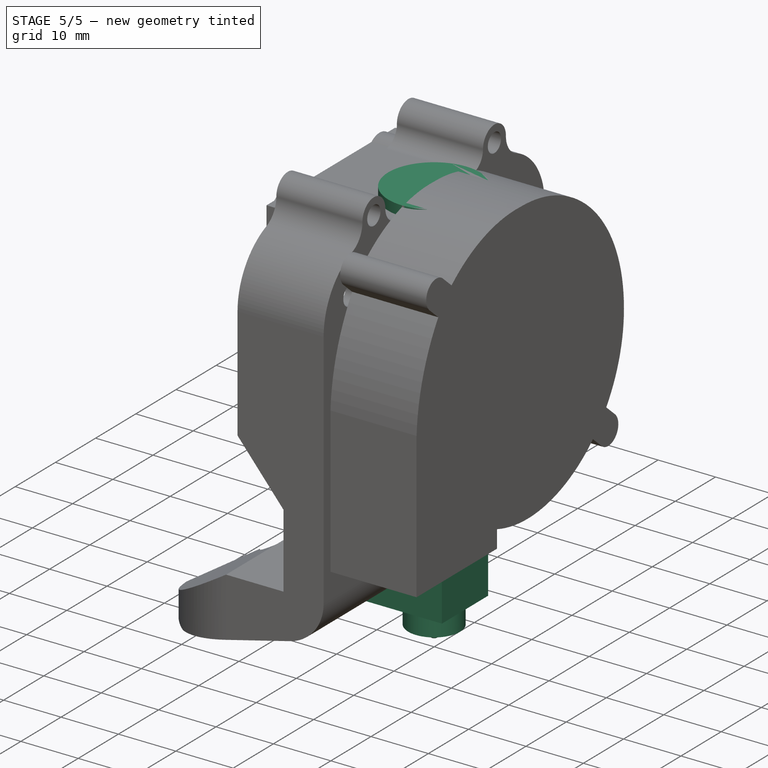
[diagram: stage 5 of 5 — iso view after this stage's code; geometry added in this stage tinted green]
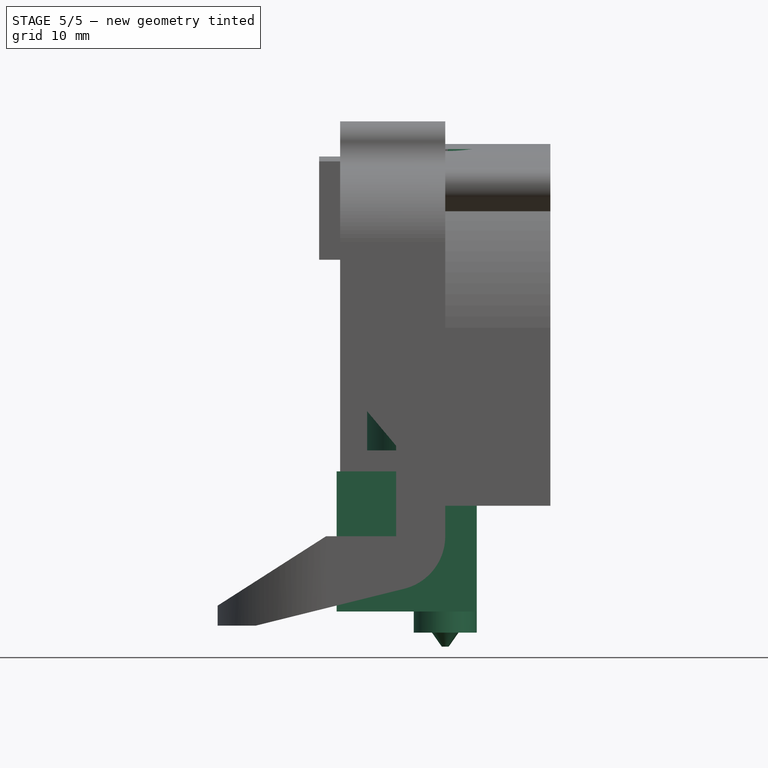
[diagram: stage 5 of 5 — front view after this stage's code; geometry added in this stage tinted green]
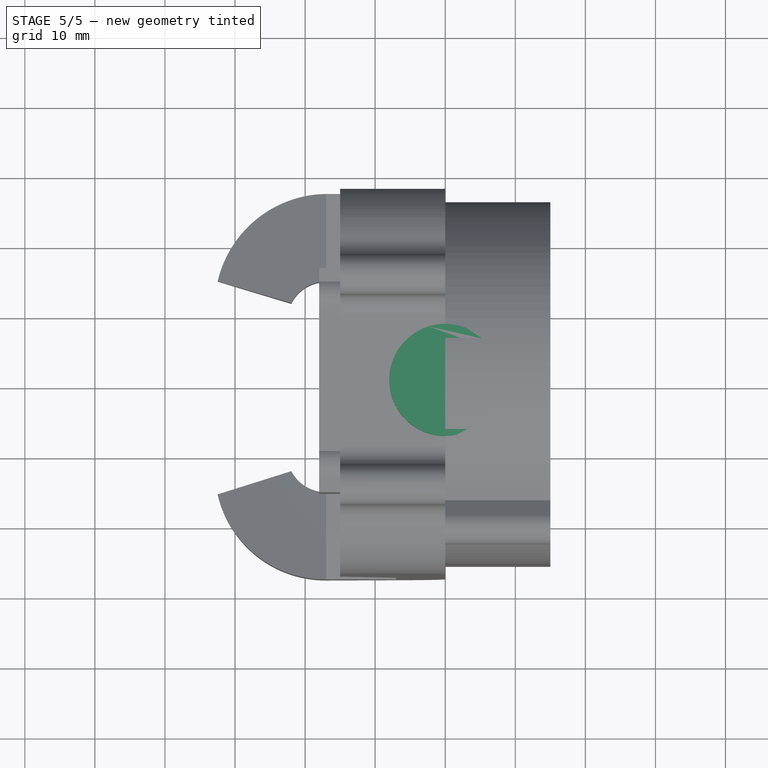
[diagram: stage 5 of 5 — top view after this stage's code; geometry added in this stage tinted green]
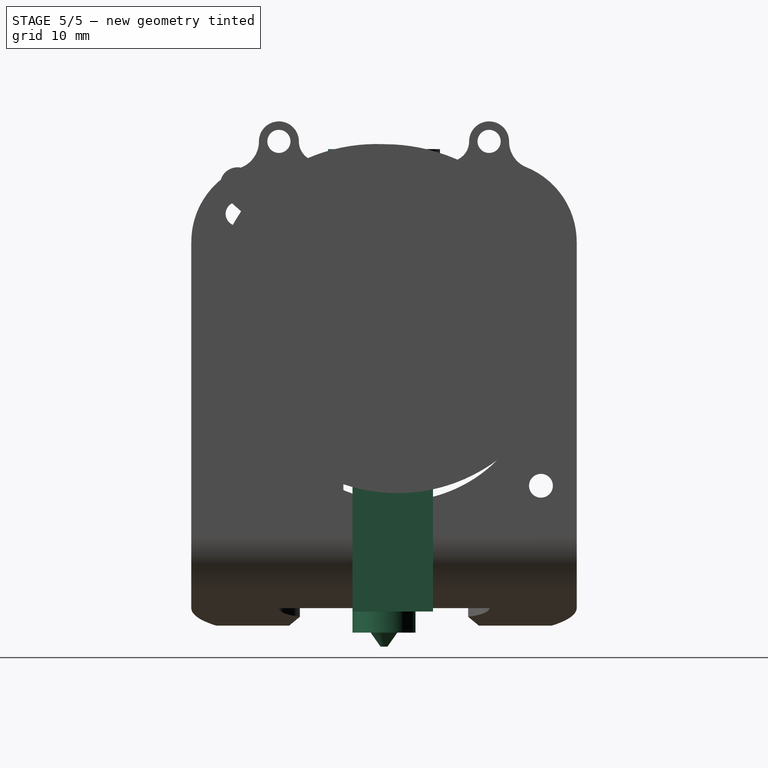
[diagram: stage 5 of 5 — right view after this stage's code; geometry added in this stage tinted green]
FEATURE [Sketcher::SketchObject] Sketch015
  FullyConstrained = true
  MapMode = 5
  Placement = pos=(0,0,0) rot=(0.57735,0.57735,0.57735;2.0944rad)
  Support = -> [YZ_Plane002]
  sketch-geometry (17):
    g0: LineSegment StartX=0 StartY=4 StartZ=0 EndX=8 EndY=4 EndZ=0
    g1: LineSegment StartX=8 StartY=4 StartZ=0 EndX=8 EndY=0 EndZ=0
    g2: LineSegment StartX=8 StartY=0 StartZ=0 EndX=6 EndY=0 EndZ=0
    g3: LineSegment StartX=6 StartY=0 StartZ=0 EndX=6 EndY=-6 EndZ=0
    g4: LineSegment StartX=6 StartY=-6 StartZ=0 EndX=8 EndY=-6 EndZ=0
    g5: LineSegment StartX=8 StartY=-6 StartZ=0 EndX=8 EndY=-12.5 EndZ=0
    g6: LineSegment StartX=8 StartY=-12.5 StartZ=0 EndX=11.15 EndY=-12.5 EndZ=0
    g7: LineSegment StartX=11.15 StartY=-12.5 StartZ=0 EndX=11.15 EndY=-39 EndZ=0
    g8: LineSegment StartX=11.15 StartY=-39 StartZ=0 EndX=3.5 EndY=-39 EndZ=0
    g9: LineSegment StartX=0.5 StartY=-67 StartZ=0 EndX=0 EndY=-67 EndZ=0
    g10: LineSegment StartX=3.5 StartY=-39 StartZ=0 EndX=3.5 EndY=-62 EndZ=0
    g11: LineSegment StartX=0 StartY=4 StartZ=0 EndX=0 EndY=-67 EndZ=0
    g12: GeomPoint X=3.5 Y=-42 Z=0
    g13: LineSegment StartX=3.5 StartY=-62 StartZ=0 EndX=4.5 EndY=-62 EndZ=0
    g14: LineSegment StartX=4.5 StartY=-62 StartZ=0 EndX=4.5 EndY=-65 EndZ=0
    g15: LineSegment StartX=4.5 StartY=-65 StartZ=0 EndX=1.90042 EndY=-65 EndZ=0
    g16: LineSegment StartX=1.90042 StartY=-65 StartZ=0 EndX=0.5 EndY=-67 EndZ=0
  constraints (50):
    c: PointOnObject(g0,g-2)
    c: Horizontal(g0)
    c: Coincident(g1,g0)
    c: Vertical(g1)
    c: Coincident(g2,g1)
    c: Coincident(g3,g2)
    c: Coincident(g4,g3)
    c: Horizontal(g4)
    c: Horizontal(g2)
    c: Distance(g0) = 8
    c: Distance(g1) = 4
    c: Distance(g3) = 6
    c: Distance(g2) = 2
    c: Distance(g4) = 2
    c: Coincident(g5,g4)
    c: Horizontal(g6)
    c: Coincident(g7,g6)
    c: Vertical(g7)
    c: Vertical(g5)
    c: Coincident(g6,g5)
    c: DistanceX(g-2,g6) = 11.15
    c: Coincident(g8,g7)
    c: Horizontal(g8)
    c: DistanceX(g-2,g8) = 3.5
    c: DistanceY(g7,g0) = 43
    c: Distance(g5) = 6.5
    c: PointOnObject(g9,g-2)
    c: Horizontal(g9)
    c: Distance(g9) = 0.5
    c: Coincident(g10,g8)
    c: Vertical(g10)
    c: Coincident(g11,g0)
    c: Coincident(g11,g9)
    c: Vertical(g3)
    c: PointOnObject(g2,g-1)
    c: PointOnObject(g12,g10)
    c: Distance(g12,g8) = 3
    c: Distance(g12,g10) = 20
    c: Coincident(g10,g13)
    c: Horizontal(g13)
    c: Coincident(g13,g14)
    c: Vertical(g14)
    c: Coincident(g14,g15)
    c: Horizontal(g15)
    c: Coincident(g15,g16)
    c: Coincident(g16,g9)
    c: Angle(g16,g15) = 2.18166
    c: Distance(g13) = 1
    c: DistanceY(g9,g13) = 5
    c: Distance(g14) = 3
FEATURE [PartDesign::Revolution] Revolution
  Angle = 360
  Axis = (-2e-16,3e-16,1)
  Base = (0,0,0)
  Placement = pos=(0,0,0) rot=(0.57735,0.57735,0.57735;2.0944rad)
  Profile = -> Sketch015
  ReferenceAxis = -> Sketch015 [V_Axis]
  Reversed = true
FEATURE [Sketcher::SketchObject] Sketch016
  ExternalGeometry = -> [Revolution]
  FullyConstrained = true
  MapMode = 5
  Placement = pos=(0,0,0) rot=(1,0,0;1.5708rad)
  Support = -> [XZ_Plane002]
  sketch-geometry (6):
    g0: LineSegment StartX=-3.5 StartY=-62 StartZ=0 EndX=-15.5 EndY=-62 EndZ=0
    g1: LineSegment StartX=-15.5 StartY=-62 StartZ=0 EndX=-15.5 EndY=-42 EndZ=0
    g2: LineSegment StartX=-15.5 StartY=-42 StartZ=0 EndX=4.5 EndY=-42 EndZ=0
    g3: LineSegment StartX=4.5 StartY=-42 StartZ=0 EndX=4.5 EndY=-62 EndZ=0
    g4: LineSegment StartX=4.5 StartY=-62 StartZ=0 EndX=3.5 EndY=-62 EndZ=0
    g5: LineSegment StartX=-3.5 StartY=-62 StartZ=0 EndX=3.5 EndY=-62 EndZ=0
  constraints (16):
    c: Coincident(g0,g-3)
    c: Horizontal(g0)
    c: Coincident(g1,g0)
    c: Vertical(g1)
    c: Coincident(g2,g1)
    c: Horizontal(g2)
    c: Coincident(g3,g2)
    c: Vertical(g3)
    c: Coincident(g4,g3)
    c: Coincident(g4,g-3)
    c: Horizontal(g4)
    c: Distance(g3) = 20
    c: Distance(g1,g2) = 20
    c: DistanceX(g-2,g0) = -15.5
    c: Coincident(g5,g0)
    c: Coincident(g5,g4)
FEATURE [PartDesign::Pad] Pad006  label="薄"
  BaseFeature = -> Revolution
  Direction = (0,-1,-2e-16)
  Length = 4.5
  Length2 = 10
  Placement = pos=(0,0,0) rot=(0.57735,0.57735,0.57735;2.0944rad)
  Profile = -> Sketch016
  ReferenceAxis = -> Sketch016 [N_Axis]
  Type = 0
FEATURE [PartDesign::Pad] Pad007  label="厚"
  BaseFeature = -> Pad006
  Direction = (0,-1,-2e-16)
  Length = 7
  Length2 = 10
  Placement = pos=(0,0,0) rot=(0.57735,0.57735,0.57735;2.0944rad)
  Profile = -> Sketch016
  ReferenceAxis = -> Sketch016 [N_Axis]
  Reversed = true
  Type = 0
FEATURE [Sketcher::SketchObject] Sketch020
  ExternalGeometry = -> [Pocket001]
  FullyConstrained = true
  MapMode = 5
  Placement = pos=(-6e-16,1e-15,2.25) rot=(0,0,-1;1.5708rad)
  Support = -> [Pocket001]
  sketch-geometry (3):
    g0: LineSegment StartX=-6.2 StartY=2.4e-15 StartZ=0 EndX=6.2 EndY=-1.1e-15 EndZ=0
    g1: ArcOfCircle CenterX=0 CenterY=6e-16 CenterZ=0 NormalX=0 NormalY=0 NormalZ=1 AngleXU=0 Radius=8.2 StartAngle=3.14159 EndAngle=6.28319
    g2: LineSegment StartX=-8.2 StartY=2.9e-15 StartZ=0 EndX=8.2 EndY=-1.4e-15 EndZ=0
  constraints (9):
    c: Coincident(g0,g-4)
    c: Coincident(g0,g-3)
    c: PointOnObject(g1,g-2)
    c: PointOnObject(g1,g-3)
    c: PointOnObject(g1,g-4)
    c: PointOnObject(g1,g0)
    c: Diameter(g1) = 16.4
    c: Coincident(g2,g1)
    c: Coincident(g2,g1)
FEATURE [PartDesign::Pocket] Pocket002
  BaseFeature = -> Pocket001
  Direction = (1.1e-15,-8e-16,-1)
  Length = 2.25
  Length2 = 5
  Placement = pos=(0,0,0) rot=(0.57735,0.57735,0.57735;2.0944rad)
  Profile = -> Sketch020
  ReferenceAxis = -> Sketch020 [N_Axis]
  Type = 0
FEATURE [Sketcher::SketchObject] Sketch
  FullyConstrained = true
  MapMode = 5
  Placement = pos=(0,0,0) rot=(0.57735,0.57735,0.57735;2.0944rad)
  Support = -> [Pocket002]
  sketch-geometry (4):
    g0: LineSegment StartX=-19.6231 StartY=8.25432 StartZ=0 EndX=19.6394 EndY=8.25432 EndZ=0
    g1: LineSegment StartX=19.6394 StartY=8.25432 StartZ=0 EndX=19.6394 EndY=-15.6805 EndZ=0
    g2: LineSegment StartX=19.6394 StartY=-15.6805 StartZ=0 EndX=-19.6231 EndY=-15.6805 EndZ=0
    g3: LineSegment StartX=-19.6231 StartY=-15.6805 StartZ=0 EndX=-19.6231 EndY=8.25432 EndZ=0
  constraints (12):
    c: Coincident(g0,g1)
    c: Coincident(g1,g2)
    c: Coincident(g2,g3)
    c: Coincident(g3,g0)
    c: Horizontal(g0)
    c: Horizontal(g2)
    c: Vertical(g1)
    c: Vertical(g3)
    c: DistanceX(g0) = -19.6231
    c: DistanceY(g0) = 8.25432
    c: DistanceX(g1) = 19.6394
    c: DistanceY(g1) = -15.6805
FEATURE [PartDesign::Pocket] Pocket003
  BaseFeature = -> Pocket002
  Direction = (-1,1.1e-15,-7e-16)
  Length = 0.5
  Length2 = 5
  Placement = pos=(0,0,0) rot=(0.57735,0.57735,0.57735;2.0944rad)
  Profile = -> Sketch
  ReferenceAxis = -> Sketch [N_Axis]
  Type = 0
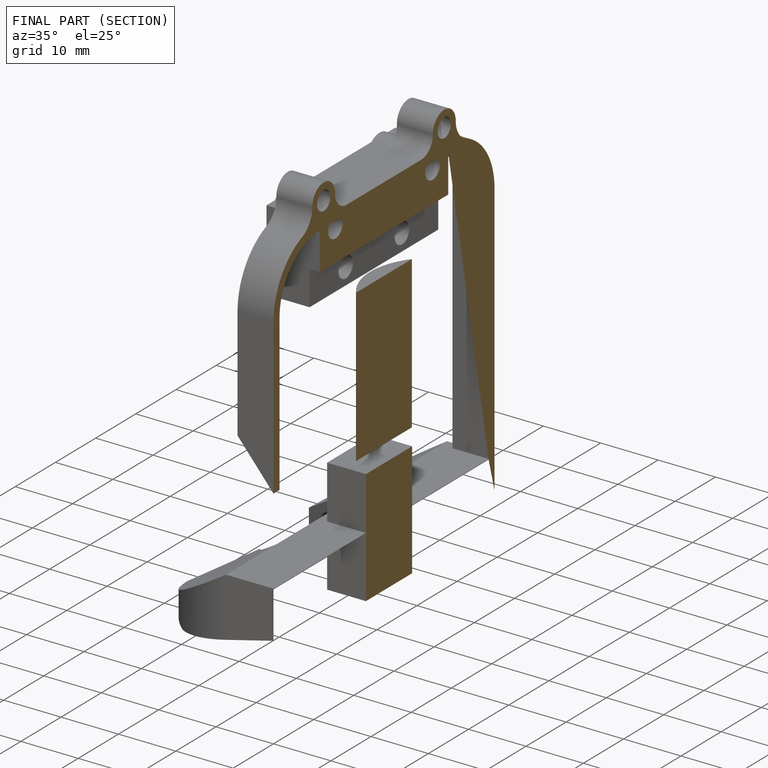
[diagram: finished part — half-section view (interior)]
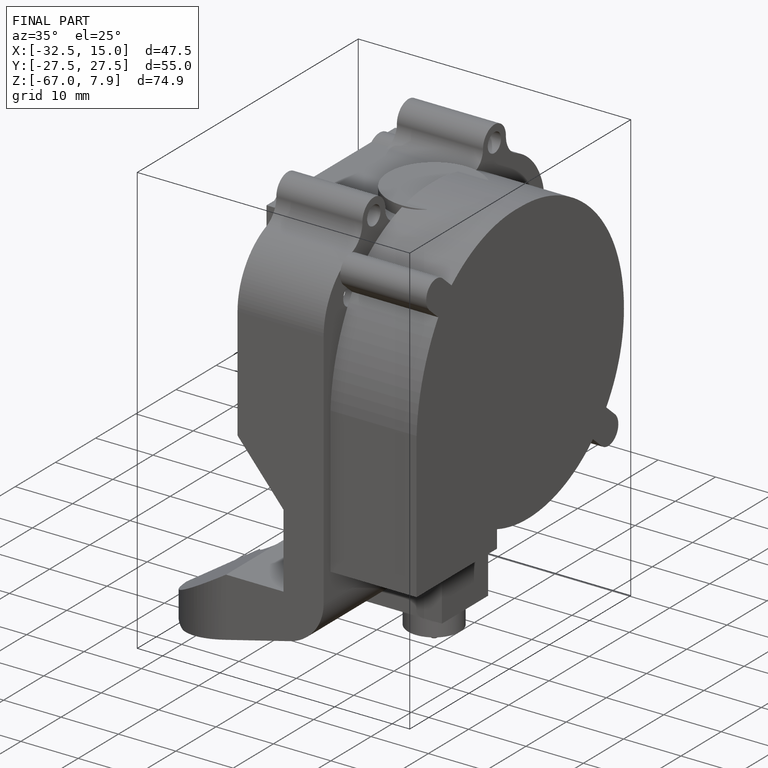
[diagram: finished part — iso view with bounding-box wireframe]
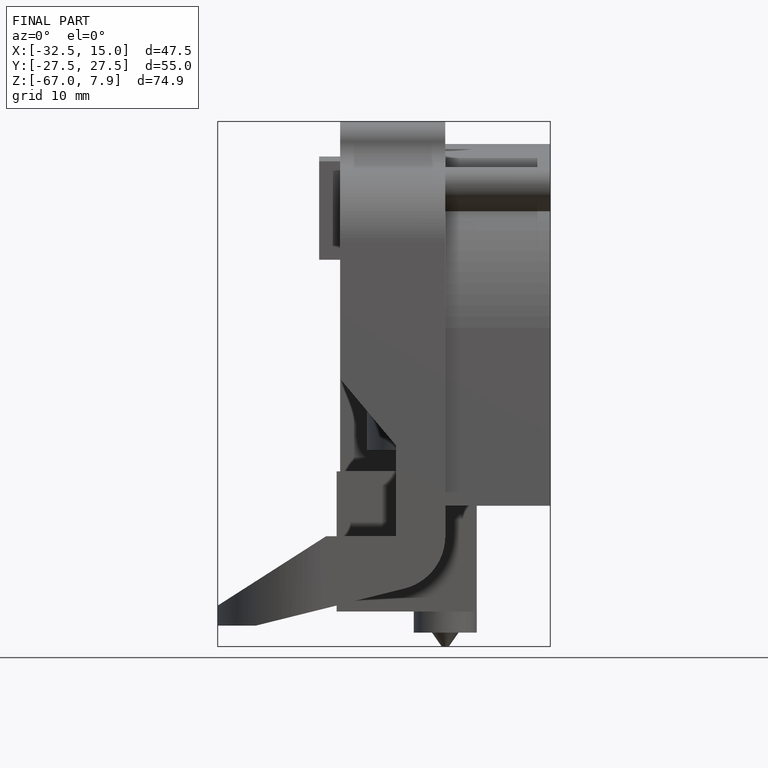
[diagram: finished part — front view with bounding-box wireframe]
